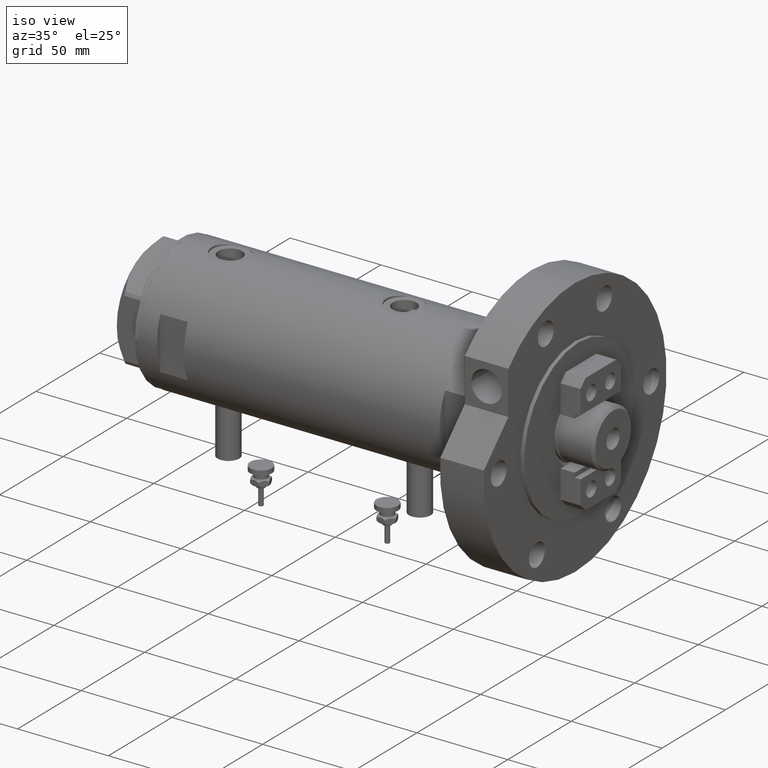
[diagram: clean part render]
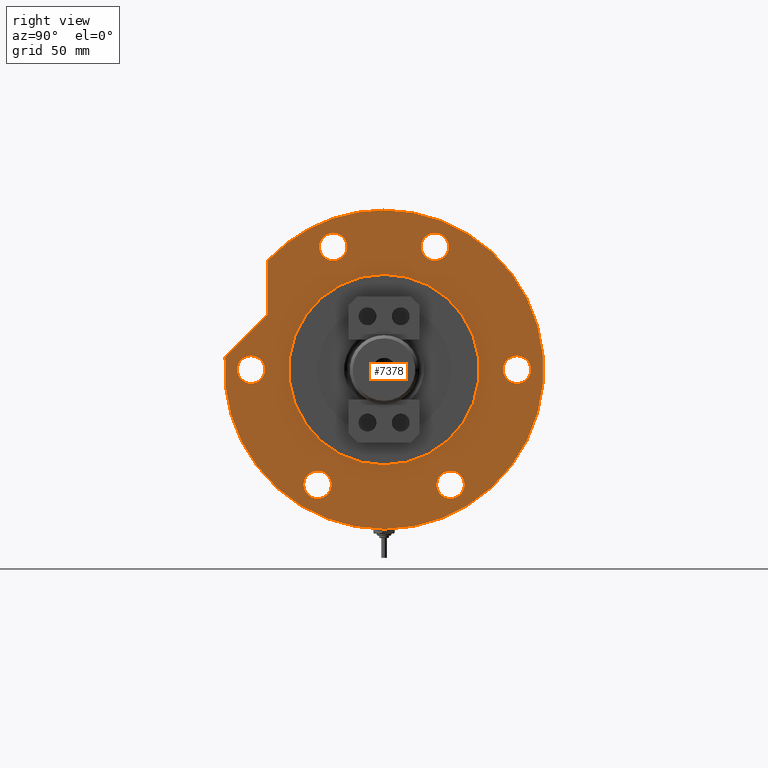
[diagram: tour spotlight — one face highlighted and labeled with its STEP entity id]
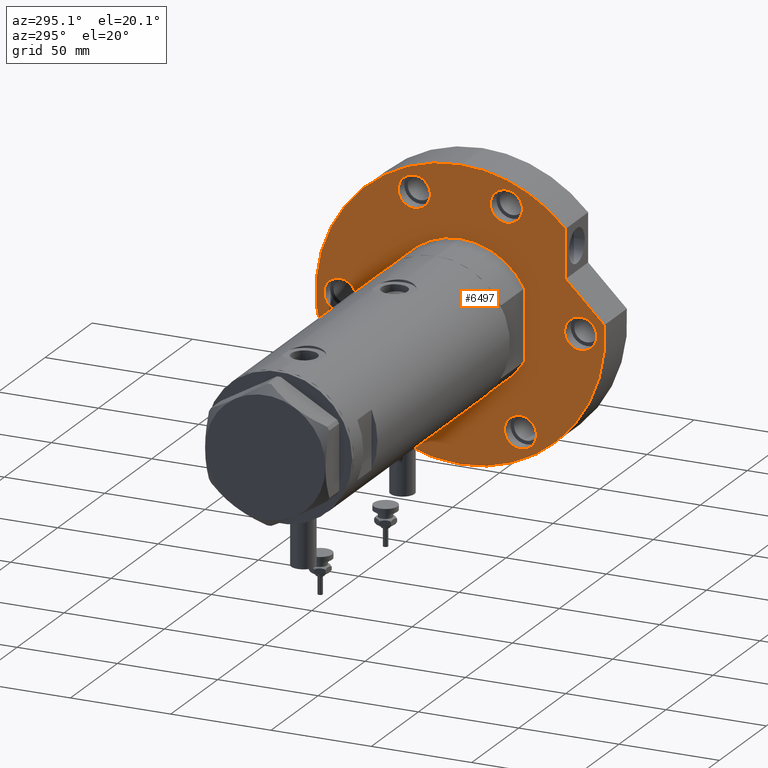
[diagram: tour spotlight — one face highlighted and labeled with its STEP entity id]
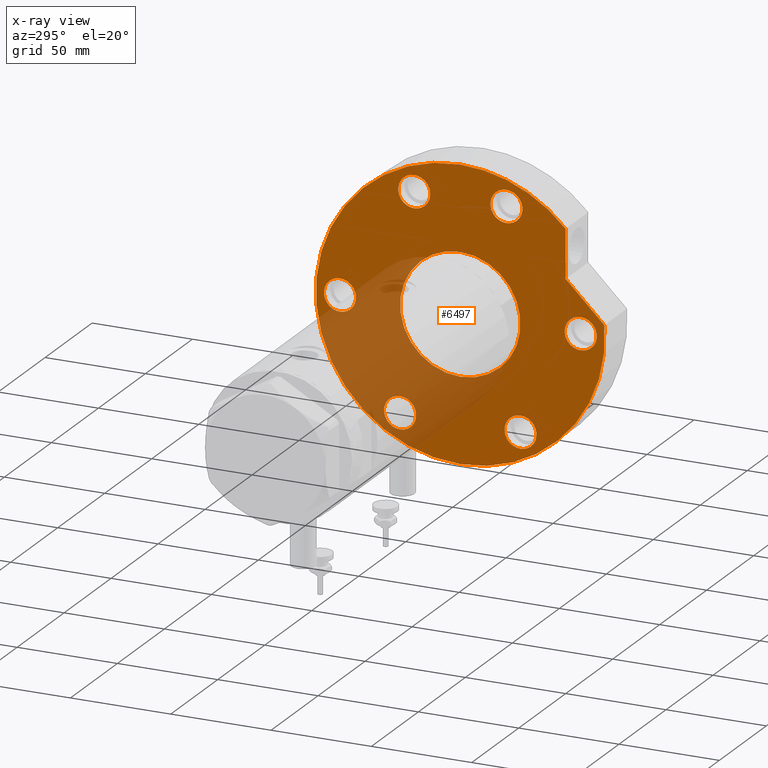
[diagram: x-ray of the same camera — body ghosted, this tour face saturated]
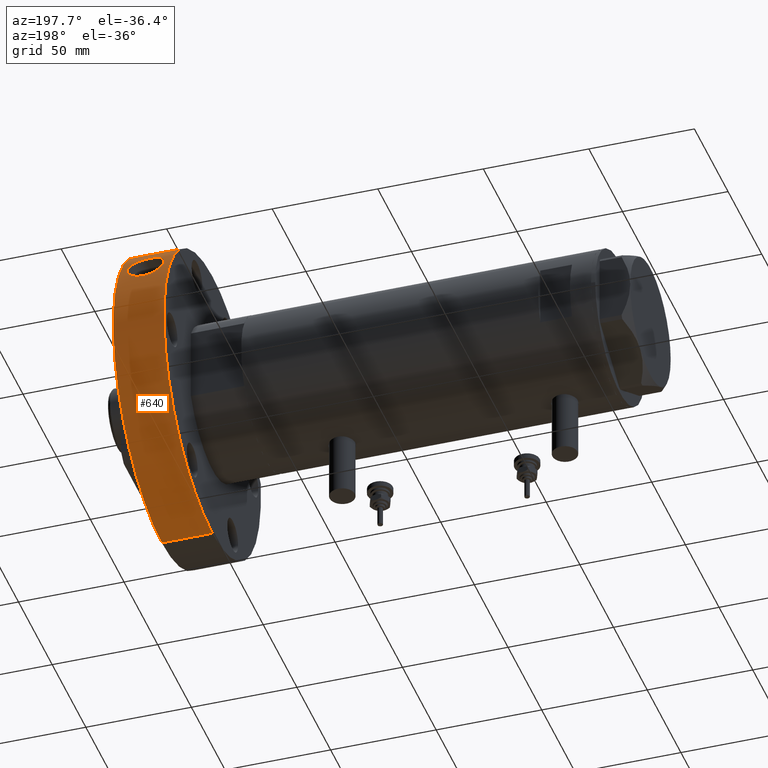
[diagram: tour spotlight — one face highlighted and labeled with its STEP entity id]
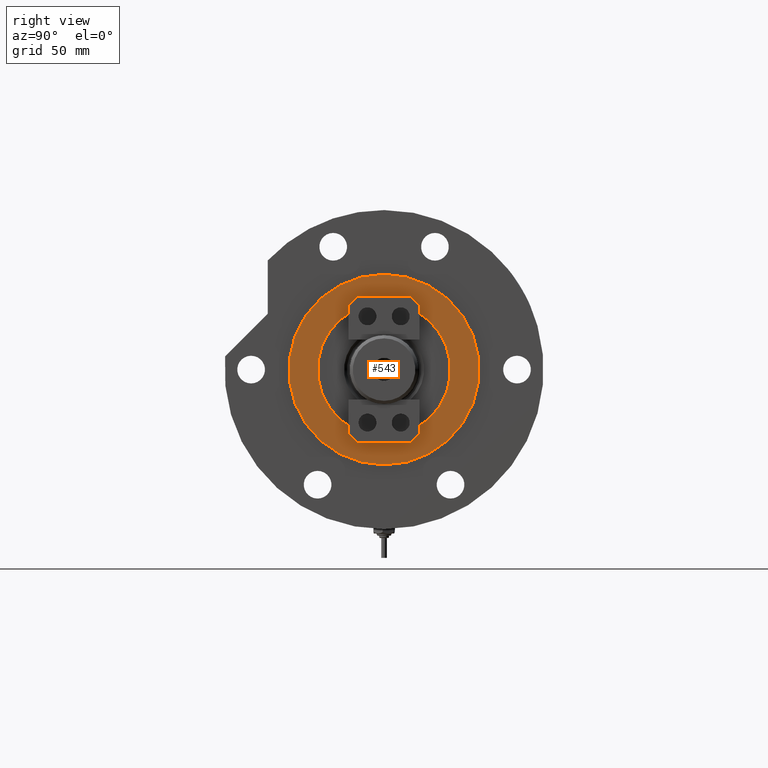
[diagram: tour spotlight — one face highlighted and labeled with its STEP entity id]
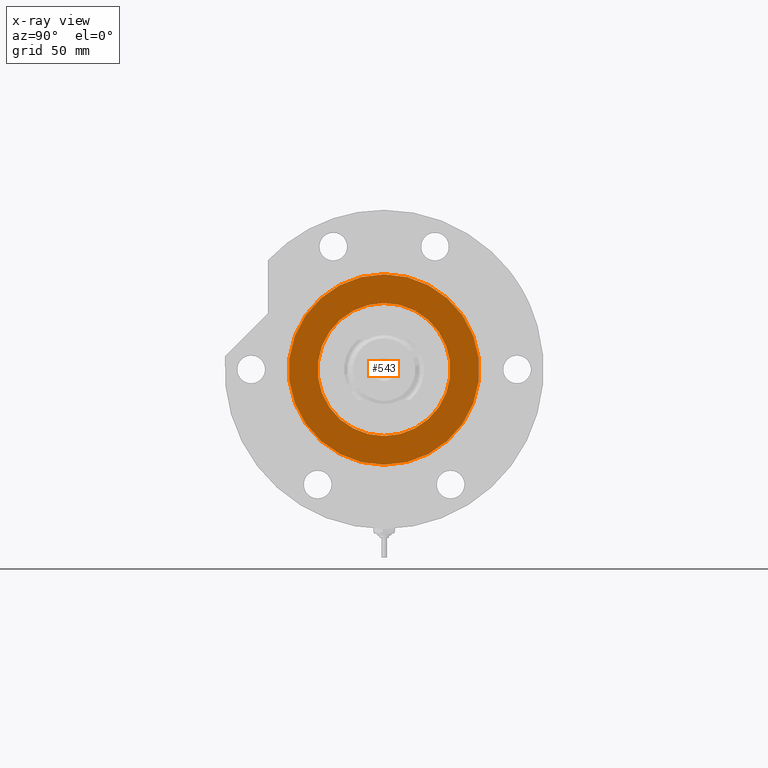
[diagram: x-ray of the same camera — body ghosted, this tour face saturated]
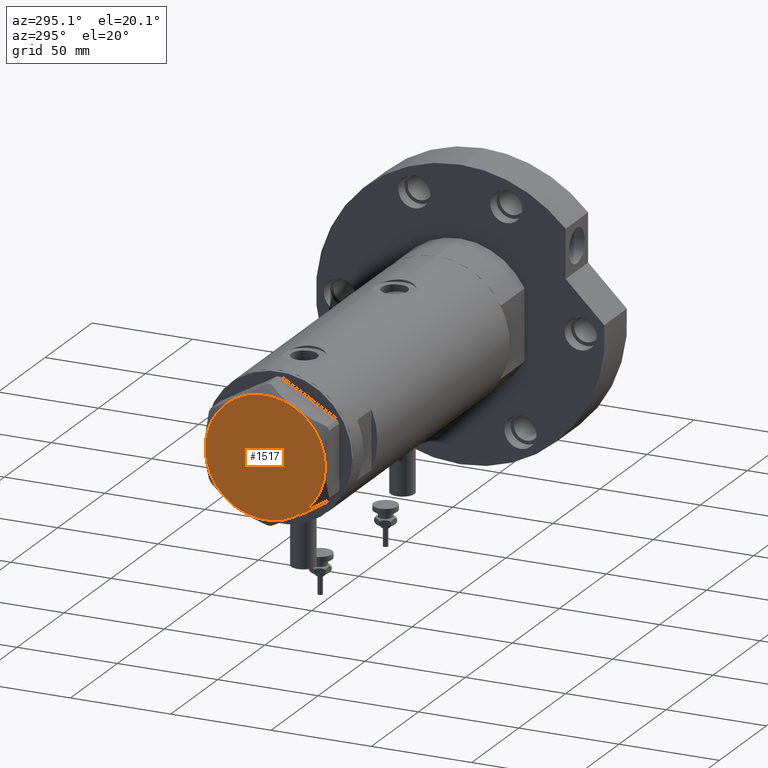
[diagram: tour spotlight — one face highlighted and labeled with its STEP entity id]
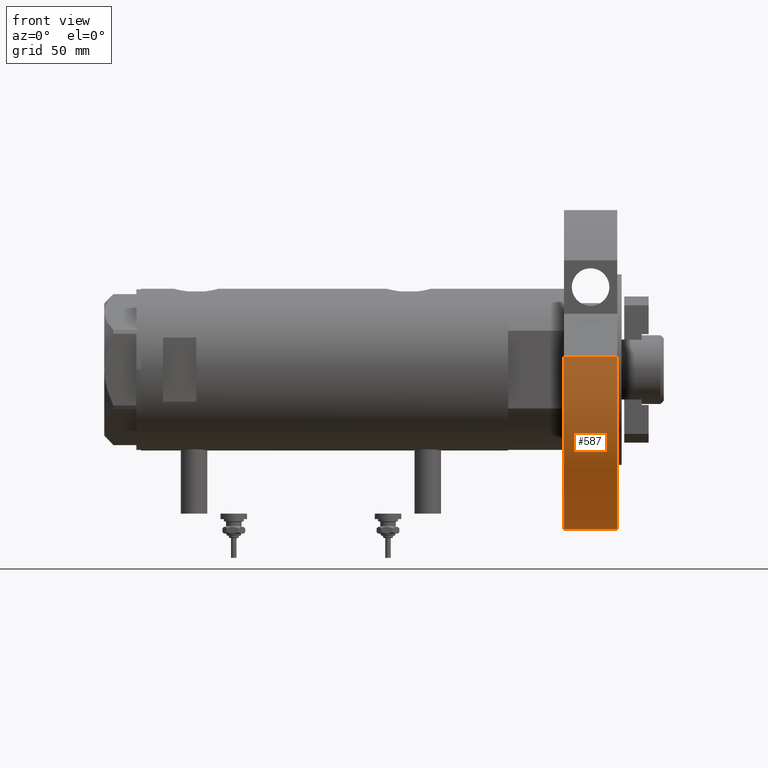
[diagram: tour spotlight — one face highlighted and labeled with its STEP entity id]
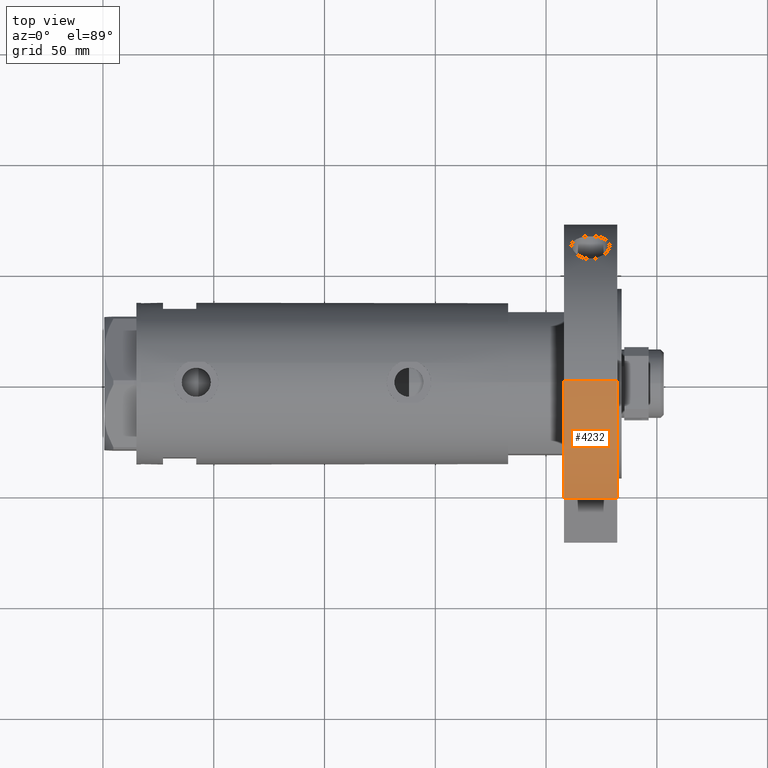
[diagram: tour spotlight — one face highlighted and labeled with its STEP entity id]
A machine part: a face-by-face anatomy tour. The part has 296 B-rep faces; the first image is the clean iso view, then the 7 largest visible faces are spotlighted one at a time (largest first), each with its STEP entity span.

Face 1 — right view, entity #7378. In plain terms, the highlighted planar face has unit normal (1, 0, -0).
Definition (entity closure, byte-faithful):
#3 = DIRECTION ( 'NONE',  ( 0.000000000000000000, 0.000000000000000000, 1.000000000000000000 ) ) ;
#47 = DIRECTION ( 'NONE',  ( 0.7071067811865513475, -0.7071067811865436870, 0.000000000000000000 ) ) ;
#147 = FACE_BOUND ( 'NONE', #7358, .T. ) ;
#154 = VERTEX_POINT ( 'NONE', #2077 ) ;
#217 = LINE ( 'NONE', #1474, #4859 ) ;
#275 = CARTESIAN_POINT ( 'NONE',  ( -51.96152422706638419, 29.99999999999987921, 24.00000000000000000 ) ) ;
#497 = LINE ( 'NONE', #8034, #2707 ) ;
#632 = CARTESIAN_POINT ( 'NONE',  ( 49.18277195067710039, 22.96100594190562560, 24.00000000000000000 ) ) ;
#639 = VERTEX_POINT ( 'NONE', #1203 ) ;
#668 = VERTEX_POINT ( 'NONE', #1363 ) ;
#674 = EDGE_LOOP ( 'NONE', ( #2686, #734 ) ) ;
#675 = CARTESIAN_POINT ( 'NONE',  ( -43.00000000000000000, 0.000000000000000000, 24.00000000000000000 ) ) ;
#684 = EDGE_CURVE ( 'NONE', #5338, #4144, #2027, .T. ) ;
#734 = ORIENTED_EDGE ( 'NONE', *, *, #3913, .F. ) ;
#738 = CIRCLE ( 'NONE', #3410, 72.00000000000000000 ) ;
#740 = AXIS2_PLACEMENT_3D ( 'NONE', #275, #980, #5437 ) ;
#743 = DIRECTION ( 'NONE',  ( 0.000000000000000000, 0.000000000000000000, 1.000000000000000000 ) ) ;
#771 = ORIENTED_EDGE ( 'NONE', *, *, #1717, .F. ) ;
#780 = CARTESIAN_POINT ( 'NONE',  ( 0.000000000000000000, 60.00000000000000000, 24.00000000000000000 ) ) ;
#799 = VERTEX_POINT ( 'NONE', #7420 ) ;
#845 = AXIS2_PLACEMENT_3D ( 'NONE', #7245, #5348, #2138 ) ;
#906 = PLANE ( 'NONE',  #6521 ) ;
#908 = DIRECTION ( 'NONE',  ( 0.000000000000000000, 0.000000000000000000, 1.000000000000000000 ) ) ;
#943 = FACE_OUTER_BOUND ( 'NONE', #1814, .T. ) ;
#980 = DIRECTION ( 'NONE',  ( 0.000000000000000000, 0.000000000000000000, 1.000000000000000000 ) ) ;
#988 = CARTESIAN_POINT ( 'NONE',  ( -58.21152422706638419, 29.99999999999987921, 24.00000000000000000 ) ) ;
#1006 = CARTESIAN_POINT ( 'NONE',  ( -51.96152422706617813, -30.00000000000023093, 24.00000000000000000 ) ) ;
#1119 = AXIS2_PLACEMENT_3D ( 'NONE', #1006, #2936, #6686 ) ;
#1203 = CARTESIAN_POINT ( 'NONE',  ( 6.249999999999999112, -60.00000000000000000, 24.00000000000000000 ) ) ;
#1210 = EDGE_LOOP ( 'NONE', ( #3872, #4931 ) ) ;
#1297 = DIRECTION ( 'NONE',  ( 0.000000000000000000, 0.000000000000000000, 1.000000000000000000 ) ) ;
#1304 = ORIENTED_EDGE ( 'NONE', *, *, #3105, .F. ) ;
#1363 = CARTESIAN_POINT ( 'NONE',  ( 61.68277195067710750, 22.96100594190562560, 24.00000000000000000 ) ) ;
#1364 = EDGE_CURVE ( 'NONE', #1454, #668, #8229, .T. ) ;
#1401 = ORIENTED_EDGE ( 'NONE', *, *, #6968, .F. ) ;
#1454 = VERTEX_POINT ( 'NONE', #632 ) ;
#1474 = CARTESIAN_POINT ( 'NONE',  ( 38.85158659923380498, 38.85158659923422420, 24.00000000000000000 ) ) ;
#1528 = VERTEX_POINT ( 'NONE', #2760 ) ;
#1539 = CARTESIAN_POINT ( 'NONE',  ( 0.000000000000000000, 0.000000000000000000, 24.00000000000000000 ) ) ;
#1584 = DIRECTION ( 'NONE',  ( 0.000000000000000000, 0.000000000000000000, 1.000000000000000000 ) ) ;
#1610 = EDGE_LOOP ( 'NONE', ( #7516, #5289 ) ) ;
#1651 = VERTEX_POINT ( 'NONE', #2288 ) ;
#1717 = EDGE_CURVE ( 'NONE', #1528, #799, #497, .T. ) ;
#1728 = DIRECTION ( 'NONE',  ( 1.000000000000000000, 0.000000000000000000, 0.000000000000000000 ) ) ;
#1747 = DIRECTION ( 'NONE',  ( 1.000000000000000000, 0.000000000000000000, 0.000000000000000000 ) ) ;
#1748 = DIRECTION ( 'NONE',  ( 1.000000000000000000, 0.000000000000000000, -0.000000000000000000 ) ) ;
#1814 = EDGE_LOOP ( 'NONE', ( #771, #5245, #7428, #3383, #7463 ) ) ;
#1822 = AXIS2_PLACEMENT_3D ( 'NONE', #3221, #7088, #2625 ) ;
#1874 = VERTEX_POINT ( 'NONE', #7851 ) ;
#1898 = CIRCLE ( 'NONE', #7698, 43.00000000000000000 ) ;
#1912 = EDGE_CURVE ( 'NONE', #154, #5623, #3508, .T. ) ;
#1939 = CARTESIAN_POINT ( 'NONE',  ( 61.68277195067710750, -22.96100594190562560, 24.00000000000000000 ) ) ;
#1985 = CARTESIAN_POINT ( 'NONE',  ( 55.43277195067710750, 22.96100594190562560, 24.00000000000000000 ) ) ;
#1990 = ORIENTED_EDGE ( 'NONE', *, *, #7160, .F. ) ;
#2004 = EDGE_CURVE ( 'NONE', #3361, #1651, #1898, .T. ) ;
#2022 = DIRECTION ( 'NONE',  ( 1.000000000000000000, 0.000000000000000000, 0.000000000000000000 ) ) ;
#2027 = CIRCLE ( 'NONE', #6185, 6.250000000000005329 ) ;
#2064 = DIRECTION ( 'NONE',  ( 1.000000000000000000, 0.000000000000000000, 0.000000000000000000 ) ) ;
#2077 = CARTESIAN_POINT ( 'NONE',  ( -6.249999999999999112, 60.00000000000000000, 24.00000000000000000 ) ) ;
#2138 = DIRECTION ( 'NONE',  ( 1.000000000000000000, 0.000000000000000000, 0.000000000000000000 ) ) ;
#2195 = AXIS2_PLACEMENT_3D ( 'NONE', #6680, #5417, #4770 ) ;
#2288 = CARTESIAN_POINT ( 'NONE',  ( 43.00000000000000000, 5.265981236333618470E-15, 24.00000000000000000 ) ) ;
#2322 = EDGE_CURVE ( 'NONE', #5421, #3734, #6749, .T. ) ;
#2345 = CARTESIAN_POINT ( 'NONE',  ( -72.00000000000000000, 0.000000000000000000, 24.00000000000000000 ) ) ;
#2363 = CARTESIAN_POINT ( 'NONE',  ( 0.000000000000000000, 0.000000000000000000, 24.00000000000000000 ) ) ;
#2622 = AXIS2_PLACEMENT_3D ( 'NONE', #7520, #4936, #1747 ) ;
#2625 = DIRECTION ( 'NONE',  ( 1.000000000000000000, 0.000000000000000000, 0.000000000000000000 ) ) ;
#2629 = AXIS2_PLACEMENT_3D ( 'NONE', #2994, #5562, #7512 ) ;
#2661 = DIRECTION ( 'NONE',  ( 0.000000000000000000, 0.000000000000000000, 1.000000000000000000 ) ) ;
#2686 = ORIENTED_EDGE ( 'NONE', *, *, #1912, .F. ) ;
#2699 = EDGE_CURVE ( 'NONE', #5421, #1528, #217, .T. ) ;
#2705 = FACE_BOUND ( 'NONE', #1210, .T. ) ;
#2707 = VECTOR ( 'NONE', #1748, 1000.000000000000000 ) ;
#2754 = CARTESIAN_POINT ( 'NONE',  ( 0.000000000000000000, 0.000000000000000000, 24.00000000000000000 ) ) ;
#2760 = CARTESIAN_POINT ( 'NONE',  ( 25.21805468567554698, 52.48511851279232587, 24.00000000000000000 ) ) ;
#2790 = DIRECTION ( 'NONE',  ( 0.000000000000000000, 0.000000000000000000, 1.000000000000000000 ) ) ;
#2876 = DIRECTION ( 'NONE',  ( 1.000000000000000000, 0.000000000000000000, 0.000000000000000000 ) ) ;
#2936 = DIRECTION ( 'NONE',  ( 0.000000000000000000, 0.000000000000000000, 1.000000000000000000 ) ) ;
#2950 = EDGE_CURVE ( 'NONE', #4144, #5338, #4465, .T. ) ;
#2994 = CARTESIAN_POINT ( 'NONE',  ( -51.96152422706638419, 29.99999999999987921, 24.00000000000000000 ) ) ;
#3105 = EDGE_CURVE ( 'NONE', #5287, #7306, #4325, .T. ) ;
#3132 = FACE_BOUND ( 'NONE', #674, .T. ) ;
#3221 = CARTESIAN_POINT ( 'NONE',  ( 0.000000000000000000, -60.00000000000000000, 24.00000000000000000 ) ) ;
#3306 = DIRECTION ( 'NONE',  ( 1.000000000000000000, 0.000000000000000000, 0.000000000000000000 ) ) ;
#3361 = VERTEX_POINT ( 'NONE', #675 ) ;
#3370 = CARTESIAN_POINT ( 'NONE',  ( -51.96152422706617813, -30.00000000000023093, 24.00000000000000000 ) ) ;
#3383 = ORIENTED_EDGE ( 'NONE', *, *, #4434, .T. ) ;
#3410 = AXIS2_PLACEMENT_3D ( 'NONE', #1539, #908, #4805 ) ;
#3454 = CARTESIAN_POINT ( 'NONE',  ( 0.000000000000000000, 0.000000000000000000, 24.00000000000000000 ) ) ;
#3508 = CIRCLE ( 'NONE', #4453, 6.249999999999999112 ) ;
#3734 = VERTEX_POINT ( 'NONE', #2345 ) ;
#3744 = VERTEX_POINT ( 'NONE', #7498 ) ;
#3872 = ORIENTED_EDGE ( 'NONE', *, *, #2950, .F. ) ;
#3901 = CARTESIAN_POINT ( 'NONE',  ( -6.249999999999999112, -60.00000000000000000, 24.00000000000000000 ) ) ;
#3913 = EDGE_CURVE ( 'NONE', #5623, #154, #4743, .T. ) ;
#3944 = AXIS2_PLACEMENT_3D ( 'NONE', #4912, #7499, #1728 ) ;
#4144 = VERTEX_POINT ( 'NONE', #5232 ) ;
#4171 = DIRECTION ( 'NONE',  ( 0.000000000000000000, 0.000000000000000000, 1.000000000000000000 ) ) ;
#4320 = CARTESIAN_POINT ( 'NONE',  ( 55.43277195067710750, 22.96100594190562560, 24.00000000000000000 ) ) ;
#4325 = CIRCLE ( 'NONE', #6486, 6.249999999999998224 ) ;
#4351 = VERTEX_POINT ( 'NONE', #988 ) ;
#4354 = CIRCLE ( 'NONE', #740, 6.249999999999998224 ) ;
#4356 = AXIS2_PLACEMENT_3D ( 'NONE', #5880, #5162, #5961 ) ;
#4361 = CIRCLE ( 'NONE', #1822, 6.249999999999999112 ) ;
#4430 = EDGE_CURVE ( 'NONE', #3744, #799, #7455, .T. ) ;
#4434 = EDGE_CURVE ( 'NONE', #3734, #3744, #738, .T. ) ;
#4453 = AXIS2_PLACEMENT_3D ( 'NONE', #780, #2790, #2022 ) ;
#4456 = ORIENTED_EDGE ( 'NONE', *, *, #5478, .F. ) ;
#4465 = CIRCLE ( 'NONE', #1119, 6.250000000000005329 ) ;
#4469 = FACE_BOUND ( 'NONE', #6691, .T. ) ;
#4474 = DIRECTION ( 'NONE',  ( 1.000000000000000000, 0.000000000000000000, 0.000000000000000000 ) ) ;
#4743 = CIRCLE ( 'NONE', #2195, 6.249999999999999112 ) ;
#4770 = DIRECTION ( 'NONE',  ( 1.000000000000000000, 0.000000000000000000, 0.000000000000000000 ) ) ;
#4805 = DIRECTION ( 'NONE',  ( 1.000000000000000000, 0.000000000000000000, 0.000000000000000000 ) ) ;
#4836 = EDGE_CURVE ( 'NONE', #639, #6218, #7730, .T. ) ;
#4859 = VECTOR ( 'NONE', #47, 1000.000000000000000 ) ;
#4885 = CIRCLE ( 'NONE', #4356, 43.00000000000000000 ) ;
#4912 = CARTESIAN_POINT ( 'NONE',  ( 0.000000000000000000, -60.00000000000000000, 24.00000000000000000 ) ) ;
#4931 = ORIENTED_EDGE ( 'NONE', *, *, #684, .F. ) ;
#4936 = DIRECTION ( 'NONE',  ( 0.000000000000000000, 0.000000000000000000, 1.000000000000000000 ) ) ;
#4951 = EDGE_CURVE ( 'NONE', #1651, #3361, #4885, .T. ) ;
#4968 = ORIENTED_EDGE ( 'NONE', *, *, #5528, .F. ) ;
#5162 = DIRECTION ( 'NONE',  ( 0.000000000000000000, 0.000000000000000000, 1.000000000000000000 ) ) ;
#5232 = CARTESIAN_POINT ( 'NONE',  ( -58.21152422706618523, -30.00000000000023093, 24.00000000000000000 ) ) ;
#5245 = ORIENTED_EDGE ( 'NONE', *, *, #2699, .F. ) ;
#5287 = VERTEX_POINT ( 'NONE', #7015 ) ;
#5289 = ORIENTED_EDGE ( 'NONE', *, *, #4951, .F. ) ;
#5338 = VERTEX_POINT ( 'NONE', #8245 ) ;
#5348 = DIRECTION ( 'NONE',  ( 0.000000000000000000, 0.000000000000000000, 1.000000000000000000 ) ) ;
#5417 = DIRECTION ( 'NONE',  ( 0.000000000000000000, 0.000000000000000000, 1.000000000000000000 ) ) ;
#5421 = VERTEX_POINT ( 'NONE', #8162 ) ;
#5437 = DIRECTION ( 'NONE',  ( 1.000000000000000000, 0.000000000000000000, 0.000000000000000000 ) ) ;
#5444 = DIRECTION ( 'NONE',  ( 1.000000000000000000, 0.000000000000000000, 0.000000000000000000 ) ) ;
#5448 = AXIS2_PLACEMENT_3D ( 'NONE', #1985, #743, #4474 ) ;
#5478 = EDGE_CURVE ( 'NONE', #668, #1454, #7186, .T. ) ;
#5528 = EDGE_CURVE ( 'NONE', #6218, #639, #4361, .T. ) ;
#5562 = DIRECTION ( 'NONE',  ( 0.000000000000000000, 0.000000000000000000, 1.000000000000000000 ) ) ;
#5564 = AXIS2_PLACEMENT_3D ( 'NONE', #2754, #4171, #2876 ) ;
#5567 = CARTESIAN_POINT ( 'NONE',  ( 6.249999999999999112, 60.00000000000000000, 24.00000000000000000 ) ) ;
#5623 = VERTEX_POINT ( 'NONE', #5567 ) ;
#5817 = ORIENTED_EDGE ( 'NONE', *, *, #1364, .F. ) ;
#5854 = CIRCLE ( 'NONE', #2629, 6.249999999999998224 ) ;
#5873 = CARTESIAN_POINT ( 'NONE',  ( 55.43277195067710750, -22.96100594190562560, 24.00000000000000000 ) ) ;
#5880 = CARTESIAN_POINT ( 'NONE',  ( 0.000000000000000000, 0.000000000000000000, 24.00000000000000000 ) ) ;
#5890 = EDGE_LOOP ( 'NONE', ( #6646, #1401 ) ) ;
#5906 = FACE_BOUND ( 'NONE', #5890, .T. ) ;
#5961 = DIRECTION ( 'NONE',  ( 1.000000000000000000, 0.000000000000000000, 0.000000000000000000 ) ) ;
#6026 = EDGE_LOOP ( 'NONE', ( #4968, #6952 ) ) ;
#6028 = DIRECTION ( 'NONE',  ( 1.000000000000000000, 0.000000000000000000, -0.000000000000000000 ) ) ;
#6109 = DIRECTION ( 'NONE',  ( 0.000000000000000000, 0.000000000000000000, 1.000000000000000000 ) ) ;
#6185 = AXIS2_PLACEMENT_3D ( 'NONE', #3370, #2661, #2064 ) ;
#6218 = VERTEX_POINT ( 'NONE', #3901 ) ;
#6486 = AXIS2_PLACEMENT_3D ( 'NONE', #5873, #1297, #3306 ) ;
#6521 = AXIS2_PLACEMENT_3D ( 'NONE', #3454, #1584, #6028 ) ;
#6646 = ORIENTED_EDGE ( 'NONE', *, *, #7638, .F. ) ;
#6680 = CARTESIAN_POINT ( 'NONE',  ( 0.000000000000000000, 60.00000000000000000, 24.00000000000000000 ) ) ;
#6686 = DIRECTION ( 'NONE',  ( 1.000000000000000000, 0.000000000000000000, 0.000000000000000000 ) ) ;
#6691 = EDGE_LOOP ( 'NONE', ( #5817, #4456 ) ) ;
#6749 = CIRCLE ( 'NONE', #845, 72.00000000000000000 ) ;
#6860 = DIRECTION ( 'NONE',  ( 1.000000000000000000, 0.000000000000000000, 0.000000000000000000 ) ) ;
#6952 = ORIENTED_EDGE ( 'NONE', *, *, #4836, .F. ) ;
#6968 = EDGE_CURVE ( 'NONE', #1874, #4351, #4354, .T. ) ;
#7015 = CARTESIAN_POINT ( 'NONE',  ( 49.18277195067710039, -22.96100594190562560, 24.00000000000000000 ) ) ;
#7088 = DIRECTION ( 'NONE',  ( 0.000000000000000000, 0.000000000000000000, 1.000000000000000000 ) ) ;
#7160 = EDGE_CURVE ( 'NONE', #7306, #5287, #7746, .T. ) ;
#7165 = FACE_BOUND ( 'NONE', #1610, .T. ) ;
#7186 = CIRCLE ( 'NONE', #5448, 6.249999999999998224 ) ;
#7245 = CARTESIAN_POINT ( 'NONE',  ( 0.000000000000000000, 0.000000000000000000, 24.00000000000000000 ) ) ;
#7306 = VERTEX_POINT ( 'NONE', #1939 ) ;
#7358 = EDGE_LOOP ( 'NONE', ( #1304, #1990 ) ) ;
#7378 = ADVANCED_FACE ( 'NONE', ( #3132, #4469, #147, #7975, #2705, #5906, #943, #7165 ), #906, .T. ) ;
#7420 = CARTESIAN_POINT ( 'NONE',  ( 49.28805468567554726, 52.48511851279232587, 24.00000000000000000 ) ) ;
#7428 = ORIENTED_EDGE ( 'NONE', *, *, #2322, .T. ) ;
#7455 = CIRCLE ( 'NONE', #5564, 72.00000000000000000 ) ;
#7463 = ORIENTED_EDGE ( 'NONE', *, *, #4430, .T. ) ;
#7498 = CARTESIAN_POINT ( 'NONE',  ( 72.00000000000000000, 8.817456953860941711E-15, 24.00000000000000000 ) ) ;
#7499 = DIRECTION ( 'NONE',  ( 0.000000000000000000, 0.000000000000000000, 1.000000000000000000 ) ) ;
#7512 = DIRECTION ( 'NONE',  ( 1.000000000000000000, 0.000000000000000000, 0.000000000000000000 ) ) ;
#7516 = ORIENTED_EDGE ( 'NONE', *, *, #2004, .F. ) ;
#7520 = CARTESIAN_POINT ( 'NONE',  ( 55.43277195067710750, -22.96100594190562560, 24.00000000000000000 ) ) ;
#7558 = AXIS2_PLACEMENT_3D ( 'NONE', #4320, #3, #6860 ) ;
#7638 = EDGE_CURVE ( 'NONE', #4351, #1874, #5854, .T. ) ;
#7698 = AXIS2_PLACEMENT_3D ( 'NONE', #2363, #6109, #5444 ) ;
#7730 = CIRCLE ( 'NONE', #3944, 6.249999999999999112 ) ;
#7746 = CIRCLE ( 'NONE', #2622, 6.249999999999998224 ) ;
#7851 = CARTESIAN_POINT ( 'NONE',  ( -45.71152422706637708, 29.99999999999987921, 24.00000000000000000 ) ) ;
#7975 = FACE_BOUND ( 'NONE', #6026, .T. ) ;
#8034 = CARTESIAN_POINT ( 'NONE',  ( 0.000000000000000000, 52.48511851279232587, 24.00000000000000000 ) ) ;
#8162 = CARTESIAN_POINT ( 'NONE',  ( 5.949394898342027282, 71.75377830012563152, 24.00000000000000000 ) ) ;
#8229 = CIRCLE ( 'NONE', #7558, 6.249999999999998224 ) ;
#8245 = CARTESIAN_POINT ( 'NONE',  ( -45.71152422706617813, -30.00000000000023093, 24.00000000000000000 ) ) ;

Face 2 — auxiliary view, entity #6497. An x-ray twin of the same camera follows (body ghosted, this face saturated) — the face is partly hidden behind the body. In plain terms, the highlighted planar face has unit normal (1, 0, -0).
Definition (entity closure, byte-faithful):
#10 = DIRECTION ( 'NONE',  ( 0.7071067811865513475, -0.7071067811865436870, -0.000000000000000000 ) ) ;
#19 = CARTESIAN_POINT ( 'NONE',  ( 0.000000000000000000, -60.00000000000000000, 0.000000000000000000 ) ) ;
#21 = EDGE_CURVE ( 'NONE', #2517, #1837, #5795, .T. ) ;
#45 = CARTESIAN_POINT ( 'NONE',  ( 47.43277195067710750, 22.96100594190562560, 0.000000000000000000 ) ) ;
#80 = CARTESIAN_POINT ( 'NONE',  ( 55.43277195067710750, -22.96100594190562560, 0.000000000000000000 ) ) ;
#115 = FACE_BOUND ( 'NONE', #2583, .T. ) ;
#153 = DIRECTION ( 'NONE',  ( 0.000000000000000000, 0.000000000000000000, -1.000000000000000000 ) ) ;
#161 = CIRCLE ( 'NONE', #6198, 72.00000000000000000 ) ;
#200 = FACE_BOUND ( 'NONE', #6512, .T. ) ;
#220 = VERTEX_POINT ( 'NONE', #3337 ) ;
#282 = CARTESIAN_POINT ( 'NONE',  ( 8.000000000000000000, 60.00000000000000000, 0.000000000000000000 ) ) ;
#353 = AXIS2_PLACEMENT_3D ( 'NONE', #4301, #1831, #1159 ) ;
#377 = CARTESIAN_POINT ( 'NONE',  ( -59.96152422706617813, -30.00000000000023093, 0.000000000000000000 ) ) ;
#500 = AXIS2_PLACEMENT_3D ( 'NONE', #7218, #3970, #3222 ) ;
#570 = CARTESIAN_POINT ( 'NONE',  ( 0.000000000000000000, 0.000000000000000000, 0.000000000000000000 ) ) ;
#589 = VERTEX_POINT ( 'NONE', #5736 ) ;
#597 = EDGE_CURVE ( 'NONE', #7614, #589, #7142, .T. ) ;
#695 = DIRECTION ( 'NONE',  ( 0.000000000000000000, 0.000000000000000000, 1.000000000000000000 ) ) ;
#741 = CARTESIAN_POINT ( 'NONE',  ( 55.43277195067710750, 22.96100594190562560, 0.000000000000000000 ) ) ;
#750 = DIRECTION ( 'NONE',  ( -1.000000000000000000, 0.000000000000000000, 0.000000000000000000 ) ) ;
#779 = CARTESIAN_POINT ( 'NONE',  ( 63.43277195067710750, -22.96100594190562560, 0.000000000000000000 ) ) ;
#903 = EDGE_CURVE ( 'NONE', #3929, #6042, #4698, .T. ) ;
#923 = EDGE_LOOP ( 'NONE', ( #2698, #1582 ) ) ;
#946 = EDGE_CURVE ( 'NONE', #220, #4956, #5053, .T. ) ;
#968 = DIRECTION ( 'NONE',  ( 1.000000000000000000, 0.000000000000000000, 0.000000000000000000 ) ) ;
#1039 = ORIENTED_EDGE ( 'NONE', *, *, #2334, .T. ) ;
#1058 = CARTESIAN_POINT ( 'NONE',  ( 63.43277195067710750, 22.96100594190562560, 0.000000000000000000 ) ) ;
#1067 = DIRECTION ( 'NONE',  ( 0.000000000000000000, 0.000000000000000000, -1.000000000000000000 ) ) ;
#1068 = CARTESIAN_POINT ( 'NONE',  ( -43.96152422706638419, 29.99999999999987921, 0.000000000000000000 ) ) ;
#1086 = AXIS2_PLACEMENT_3D ( 'NONE', #3613, #1067, #6707 ) ;
#1110 = CARTESIAN_POINT ( 'NONE',  ( -72.00000000000000000, 0.000000000000000000, 0.000000000000000000 ) ) ;
#1159 = DIRECTION ( 'NONE',  ( -1.000000000000000000, 0.000000000000000000, 0.000000000000000000 ) ) ;
#1204 = VERTEX_POINT ( 'NONE', #4538 ) ;
#1217 = EDGE_CURVE ( 'NONE', #7531, #7240, #4168, .T. ) ;
#1229 = VERTEX_POINT ( 'NONE', #1058 ) ;
#1285 = CARTESIAN_POINT ( 'NONE',  ( 0.000000000000000000, 0.000000000000000000, 0.000000000000000000 ) ) ;
#1294 = DIRECTION ( 'NONE',  ( -1.000000000000000000, 0.000000000000000000, 0.000000000000000000 ) ) ;
#1301 = LINE ( 'NONE', #4604, #6370 ) ;
#1309 = CARTESIAN_POINT ( 'NONE',  ( 0.000000000000000000, -60.00000000000000000, 0.000000000000000000 ) ) ;
#1312 = EDGE_CURVE ( 'NONE', #220, #4519, #161, .T. ) ;
#1409 = EDGE_CURVE ( 'NONE', #6042, #3929, #4843, .T. ) ;
#1419 = DIRECTION ( 'NONE',  ( 0.000000000000000000, 0.000000000000000000, -1.000000000000000000 ) ) ;
#1435 = ORIENTED_EDGE ( 'NONE', *, *, #5256, .F. ) ;
#1466 = VERTEX_POINT ( 'NONE', #45 ) ;
#1582 = ORIENTED_EDGE ( 'NONE', *, *, #4228, .F. ) ;
#1685 = AXIS2_PLACEMENT_3D ( 'NONE', #2889, #3471, #7356 ) ;
#1701 = VERTEX_POINT ( 'NONE', #3544 ) ;
#1816 = EDGE_CURVE ( 'NONE', #7239, #2211, #5266, .T. ) ;
#1831 = DIRECTION ( 'NONE',  ( 0.000000000000000000, 0.000000000000000000, -1.000000000000000000 ) ) ;
#1837 = VERTEX_POINT ( 'NONE', #282 ) ;
#1847 = ORIENTED_EDGE ( 'NONE', *, *, #5060, .T. ) ;
#1849 = DIRECTION ( 'NONE',  ( 0.000000000000000000, 0.000000000000000000, -1.000000000000000000 ) ) ;
#1884 = CARTESIAN_POINT ( 'NONE',  ( -8.000000000000000000, 60.00000000000000000, 0.000000000000000000 ) ) ;
#1947 = FACE_BOUND ( 'NONE', #5704, .T. ) ;
#2030 = FACE_OUTER_BOUND ( 'NONE', #7440, .T. ) ;
#2037 = DIRECTION ( 'NONE',  ( 1.000000000000000000, 0.000000000000000000, 0.000000000000000000 ) ) ;
#2160 = AXIS2_PLACEMENT_3D ( 'NONE', #5707, #7656, #1294 ) ;
#2181 = DIRECTION ( 'NONE',  ( 0.000000000000000000, 0.000000000000000000, -1.000000000000000000 ) ) ;
#2211 = VERTEX_POINT ( 'NONE', #7840 ) ;
#2221 = CARTESIAN_POINT ( 'NONE',  ( 0.000000000000000000, 0.000000000000000000, 0.000000000000000000 ) ) ;
#2229 = DIRECTION ( 'NONE',  ( 1.000000000000000000, 0.000000000000000000, 0.000000000000000000 ) ) ;
#2265 = ORIENTED_EDGE ( 'NONE', *, *, #1816, .F. ) ;
#2334 = EDGE_CURVE ( 'NONE', #6564, #1204, #4191, .T. ) ;
#2517 = VERTEX_POINT ( 'NONE', #1884 ) ;
#2577 = DIRECTION ( 'NONE',  ( -1.000000000000000000, 0.000000000000000000, 0.000000000000000000 ) ) ;
#2583 = EDGE_LOOP ( 'NONE', ( #7924, #1039 ) ) ;
#2698 = ORIENTED_EDGE ( 'NONE', *, *, #6714, .F. ) ;
#2837 = CARTESIAN_POINT ( 'NONE',  ( -30.00000000000000000, 3.673940397442059178E-15, 0.000000000000000000 ) ) ;
#2858 = DIRECTION ( 'NONE',  ( 0.000000000000000000, 0.000000000000000000, 1.000000000000000000 ) ) ;
#2889 = CARTESIAN_POINT ( 'NONE',  ( -51.96152422706638419, 29.99999999999987921, 0.000000000000000000 ) ) ;
#3108 = EDGE_CURVE ( 'NONE', #7240, #7531, #7576, .T. ) ;
#3113 = DIRECTION ( 'NONE',  ( -1.000000000000000000, 0.000000000000000000, 0.000000000000000000 ) ) ;
#3133 = DIRECTION ( 'NONE',  ( 0.000000000000000000, 0.000000000000000000, 1.000000000000000000 ) ) ;
#3222 = DIRECTION ( 'NONE',  ( 1.000000000000000000, 0.000000000000000000, -0.000000000000000000 ) ) ;
#3312 = ORIENTED_EDGE ( 'NONE', *, *, #903, .F. ) ;
#3337 = CARTESIAN_POINT ( 'NONE',  ( 5.949394898342027282, 71.75377830012563152, 0.000000000000000000 ) ) ;
#3377 = PLANE ( 'NONE',  #500 ) ;
#3471 = DIRECTION ( 'NONE',  ( 0.000000000000000000, 0.000000000000000000, -1.000000000000000000 ) ) ;
#3544 = CARTESIAN_POINT ( 'NONE',  ( -59.96152422706638419, 29.99999999999987921, 0.000000000000000000 ) ) ;
#3564 = CARTESIAN_POINT ( 'NONE',  ( 55.43277195067710750, -22.96100594190562560, 0.000000000000000000 ) ) ;
#3566 = AXIS2_PLACEMENT_3D ( 'NONE', #5347, #2181, #7927 ) ;
#3580 = ORIENTED_EDGE ( 'NONE', *, *, #946, .T. ) ;
#3613 = CARTESIAN_POINT ( 'NONE',  ( -51.96152422706617813, -30.00000000000023093, 0.000000000000000000 ) ) ;
#3643 = EDGE_LOOP ( 'NONE', ( #3312, #7715 ) ) ;
#3663 = CARTESIAN_POINT ( 'NONE',  ( -8.000000000000000000, -60.00000000000000000, 0.000000000000000000 ) ) ;
#3743 = CARTESIAN_POINT ( 'NONE',  ( -43.96152422706617813, -30.00000000000023093, 0.000000000000000000 ) ) ;
#3831 = CIRCLE ( 'NONE', #4905, 8.000000000000000000 ) ;
#3921 = AXIS2_PLACEMENT_3D ( 'NONE', #80, #1419, #750 ) ;
#3929 = VERTEX_POINT ( 'NONE', #377 ) ;
#3952 = CIRCLE ( 'NONE', #353, 8.000000000000000000 ) ;
#3970 = DIRECTION ( 'NONE',  ( 0.000000000000000000, 0.000000000000000000, 1.000000000000000000 ) ) ;
#4046 = DIRECTION ( 'NONE',  ( -1.000000000000000000, 0.000000000000000000, 0.000000000000000000 ) ) ;
#4111 = DIRECTION ( 'NONE',  ( 1.000000000000000000, 0.000000000000000000, 0.000000000000000000 ) ) ;
#4168 = CIRCLE ( 'NONE', #7950, 8.000000000000000000 ) ;
#4172 = DIRECTION ( 'NONE',  ( 0.000000000000000000, 0.000000000000000000, -1.000000000000000000 ) ) ;
#4191 = CIRCLE ( 'NONE', #5405, 30.00000000000000000 ) ;
#4214 = AXIS2_PLACEMENT_3D ( 'NONE', #741, #153, #7126 ) ;
#4228 = EDGE_CURVE ( 'NONE', #1229, #1466, #4348, .T. ) ;
#4301 = CARTESIAN_POINT ( 'NONE',  ( 55.43277195067710750, 22.96100594190562560, 0.000000000000000000 ) ) ;
#4348 = CIRCLE ( 'NONE', #4214, 8.000000000000000000 ) ;
#4392 = CARTESIAN_POINT ( 'NONE',  ( 47.43277195067710750, -22.96100594190562560, 0.000000000000000000 ) ) ;
#4519 = VERTEX_POINT ( 'NONE', #1110 ) ;
#4538 = CARTESIAN_POINT ( 'NONE',  ( 30.00000000000000000, 0.000000000000000000, 0.000000000000000000 ) ) ;
#4549 = DIRECTION ( 'NONE',  ( 1.000000000000000000, 0.000000000000000000, 0.000000000000000000 ) ) ;
#4572 = AXIS2_PLACEMENT_3D ( 'NONE', #7584, #5716, #8298 ) ;
#4586 = ORIENTED_EDGE ( 'NONE', *, *, #21, .F. ) ;
#4604 = CARTESIAN_POINT ( 'NONE',  ( 25.21805468567554698, 52.48511851279232587, 0.000000000000000000 ) ) ;
#4648 = CARTESIAN_POINT ( 'NONE',  ( 25.21805468567554698, 52.48511851279233298, 0.000000000000000000 ) ) ;
#4698 = CIRCLE ( 'NONE', #1086, 8.000000000000000000 ) ;
#4740 = EDGE_CURVE ( 'NONE', #4519, #7239, #5703, .T. ) ;
#4768 = AXIS2_PLACEMENT_3D ( 'NONE', #1285, #695, #5737 ) ;
#4843 = CIRCLE ( 'NONE', #4572, 8.000000000000000000 ) ;
#4905 = AXIS2_PLACEMENT_3D ( 'NONE', #6115, #4172, #4046 ) ;
#4956 = VERTEX_POINT ( 'NONE', #4648 ) ;
#4965 = CARTESIAN_POINT ( 'NONE',  ( 25.21805468567554698, 52.48511851279232587, 0.000000000000000000 ) ) ;
#5014 = ORIENTED_EDGE ( 'NONE', *, *, #1217, .F. ) ;
#5053 = LINE ( 'NONE', #4965, #6596 ) ;
#5060 = EDGE_CURVE ( 'NONE', #4956, #2211, #1301, .T. ) ;
#5163 = ORIENTED_EDGE ( 'NONE', *, *, #3108, .F. ) ;
#5189 = CARTESIAN_POINT ( 'NONE',  ( 72.00000000000000000, 8.817456953860941711E-15, 0.000000000000000000 ) ) ;
#5191 = AXIS2_PLACEMENT_3D ( 'NONE', #1309, #1849, #3113 ) ;
#5236 = ORIENTED_EDGE ( 'NONE', *, *, #597, .F. ) ;
#5256 = EDGE_CURVE ( 'NONE', #1701, #7574, #7611, .T. ) ;
#5266 = CIRCLE ( 'NONE', #5539, 72.00000000000000000 ) ;
#5347 = CARTESIAN_POINT ( 'NONE',  ( -51.96152422706638419, 29.99999999999987921, 0.000000000000000000 ) ) ;
#5388 = CARTESIAN_POINT ( 'NONE',  ( 0.000000000000000000, 0.000000000000000000, 0.000000000000000000 ) ) ;
#5405 = AXIS2_PLACEMENT_3D ( 'NONE', #8012, #8132, #2229 ) ;
#5539 = AXIS2_PLACEMENT_3D ( 'NONE', #570, #3133, #4549 ) ;
#5575 = EDGE_CURVE ( 'NONE', #1837, #2517, #3831, .T. ) ;
#5703 = CIRCLE ( 'NONE', #8006, 72.00000000000000000 ) ;
#5704 = EDGE_LOOP ( 'NONE', ( #1435, #8224 ) ) ;
#5707 = CARTESIAN_POINT ( 'NONE',  ( 0.000000000000000000, 60.00000000000000000, 0.000000000000000000 ) ) ;
#5716 = DIRECTION ( 'NONE',  ( 0.000000000000000000, 0.000000000000000000, -1.000000000000000000 ) ) ;
#5736 = CARTESIAN_POINT ( 'NONE',  ( 8.000000000000000000, -60.00000000000000000, 0.000000000000000000 ) ) ;
#5737 = DIRECTION ( 'NONE',  ( 1.000000000000000000, 0.000000000000000000, 0.000000000000000000 ) ) ;
#5795 = CIRCLE ( 'NONE', #2160, 8.000000000000000000 ) ;
#5813 = DIRECTION ( 'NONE',  ( 0.000000000000000000, 0.000000000000000000, -1.000000000000000000 ) ) ;
#5862 = CIRCLE ( 'NONE', #3566, 8.000000000000000000 ) ;
#5868 = FACE_BOUND ( 'NONE', #7953, .T. ) ;
#6042 = VERTEX_POINT ( 'NONE', #3743 ) ;
#6046 = EDGE_LOOP ( 'NONE', ( #4586, #7311 ) ) ;
#6115 = CARTESIAN_POINT ( 'NONE',  ( 0.000000000000000000, 60.00000000000000000, 0.000000000000000000 ) ) ;
#6176 = DIRECTION ( 'NONE',  ( 0.000000000000000000, 0.000000000000000000, -1.000000000000000000 ) ) ;
#6198 = AXIS2_PLACEMENT_3D ( 'NONE', #5388, #7325, #4111 ) ;
#6370 = VECTOR ( 'NONE', #2037, 1000.000000000000000 ) ;
#6497 = ADVANCED_FACE ( 'NONE', ( #6505, #7775, #200, #5868, #6582, #1947, #115, #2030 ), #3377, .F. ) ;
#6505 = FACE_BOUND ( 'NONE', #6046, .T. ) ;
#6512 = EDGE_LOOP ( 'NONE', ( #5163, #5014 ) ) ;
#6564 = VERTEX_POINT ( 'NONE', #2837 ) ;
#6582 = FACE_BOUND ( 'NONE', #3643, .T. ) ;
#6596 = VECTOR ( 'NONE', #10, 1000.000000000000114 ) ;
#6707 = DIRECTION ( 'NONE',  ( -1.000000000000000000, 0.000000000000000000, 0.000000000000000000 ) ) ;
#6714 = EDGE_CURVE ( 'NONE', #1466, #1229, #3952, .T. ) ;
#6728 = AXIS2_PLACEMENT_3D ( 'NONE', #19, #5813, #2577 ) ;
#6931 = CIRCLE ( 'NONE', #4768, 30.00000000000000000 ) ;
#7111 = ORIENTED_EDGE ( 'NONE', *, *, #1312, .F. ) ;
#7126 = DIRECTION ( 'NONE',  ( -1.000000000000000000, 0.000000000000000000, 0.000000000000000000 ) ) ;
#7142 = CIRCLE ( 'NONE', #6728, 8.000000000000000000 ) ;
#7217 = EDGE_CURVE ( 'NONE', #1204, #6564, #6931, .T. ) ;
#7218 = CARTESIAN_POINT ( 'NONE',  ( 0.000000000000000000, 0.000000000000000000, 0.000000000000000000 ) ) ;
#7239 = VERTEX_POINT ( 'NONE', #5189 ) ;
#7240 = VERTEX_POINT ( 'NONE', #4392 ) ;
#7273 = ORIENTED_EDGE ( 'NONE', *, *, #4740, .F. ) ;
#7311 = ORIENTED_EDGE ( 'NONE', *, *, #5575, .F. ) ;
#7325 = DIRECTION ( 'NONE',  ( 0.000000000000000000, 0.000000000000000000, 1.000000000000000000 ) ) ;
#7356 = DIRECTION ( 'NONE',  ( -1.000000000000000000, 0.000000000000000000, 0.000000000000000000 ) ) ;
#7440 = EDGE_LOOP ( 'NONE', ( #3580, #1847, #2265, #7273, #7111 ) ) ;
#7451 = ORIENTED_EDGE ( 'NONE', *, *, #8160, .F. ) ;
#7491 = CIRCLE ( 'NONE', #5191, 8.000000000000000000 ) ;
#7531 = VERTEX_POINT ( 'NONE', #779 ) ;
#7574 = VERTEX_POINT ( 'NONE', #1068 ) ;
#7576 = CIRCLE ( 'NONE', #3921, 8.000000000000000000 ) ;
#7584 = CARTESIAN_POINT ( 'NONE',  ( -51.96152422706617813, -30.00000000000023093, 0.000000000000000000 ) ) ;
#7611 = CIRCLE ( 'NONE', #1685, 8.000000000000000000 ) ;
#7614 = VERTEX_POINT ( 'NONE', #3663 ) ;
#7656 = DIRECTION ( 'NONE',  ( 0.000000000000000000, 0.000000000000000000, -1.000000000000000000 ) ) ;
#7715 = ORIENTED_EDGE ( 'NONE', *, *, #1409, .F. ) ;
#7775 = FACE_BOUND ( 'NONE', #923, .T. ) ;
#7840 = CARTESIAN_POINT ( 'NONE',  ( 49.28805468567554726, 52.48511851279232587, 0.000000000000000000 ) ) ;
#7924 = ORIENTED_EDGE ( 'NONE', *, *, #7217, .T. ) ;
#7927 = DIRECTION ( 'NONE',  ( -1.000000000000000000, 0.000000000000000000, 0.000000000000000000 ) ) ;
#7950 = AXIS2_PLACEMENT_3D ( 'NONE', #3564, #6176, #7963 ) ;
#7953 = EDGE_LOOP ( 'NONE', ( #5236, #7451 ) ) ;
#7954 = EDGE_CURVE ( 'NONE', #7574, #1701, #5862, .T. ) ;
#7963 = DIRECTION ( 'NONE',  ( -1.000000000000000000, 0.000000000000000000, 0.000000000000000000 ) ) ;
#8006 = AXIS2_PLACEMENT_3D ( 'NONE', #2221, #2858, #968 ) ;
#8012 = CARTESIAN_POINT ( 'NONE',  ( 0.000000000000000000, 0.000000000000000000, 0.000000000000000000 ) ) ;
#8132 = DIRECTION ( 'NONE',  ( 0.000000000000000000, 0.000000000000000000, 1.000000000000000000 ) ) ;
#8160 = EDGE_CURVE ( 'NONE', #589, #7614, #7491, .T. ) ;
#8224 = ORIENTED_EDGE ( 'NONE', *, *, #7954, .F. ) ;
#8298 = DIRECTION ( 'NONE',  ( -1.000000000000000000, 0.000000000000000000, 0.000000000000000000 ) ) ;

Face 3 — auxiliary view, entity #640. In plain terms, the highlighted cylindrical surface (partial cylindrical patch) has radius 72 mm, axis along (-1, -0, 0).
Definition (entity closure, byte-faithful):
#179 = CARTESIAN_POINT ( 'NONE',  ( 29.26896999206883976, -65.78250232959788946, 9.068741599877188975 ) ) ;
#223 = CARTESIAN_POINT ( 'NONE',  ( 33.97982076943237217, -63.47794459436669001, 4.151127599678521740 ) ) ;
#266 = CARTESIAN_POINT ( 'NONE',  ( 37.25305468567560041, -61.61339072463129440, 3.499999999999105160 ) ) ;
#297 = CARTESIAN_POINT ( 'NONE',  ( 39.82450719299651354, -59.98628528028984874, 20.11851852717635936 ) ) ;
#502 = CARTESIAN_POINT ( 'NONE',  ( 45.73459439260379611, -55.60889200603636340, 12.63979251166938589 ) ) ;
#593 = LINE ( 'NONE', #1922, #2311 ) ;
#640 = ADVANCED_FACE ( 'NONE', ( #4426, #7004 ), #7768, .T. ) ;
#692 = ORIENTED_EDGE ( 'NONE', *, *, #4434, .F. ) ;
#738 = CIRCLE ( 'NONE', #3410, 72.00000000000000000 ) ;
#806 = CARTESIAN_POINT ( 'NONE',  ( 29.73065686525130502, -65.57557200089826210, 7.999855544294678822 ) ) ;
#836 = VERTEX_POINT ( 'NONE', #4164 ) ;
#875 = CARTESIAN_POINT ( 'NONE',  ( 38.30699801771393709, -60.96671213009859969, 20.45032427420614241 ) ) ;
#908 = DIRECTION ( 'NONE',  ( 0.000000000000000000, 0.000000000000000000, 1.000000000000000000 ) ) ;
#968 = DIRECTION ( 'NONE',  ( 1.000000000000000000, 0.000000000000000000, 0.000000000000000000 ) ) ;
#1013 = CARTESIAN_POINT ( 'NONE',  ( 33.22934230317615345, -63.87551414266904004, 19.50713392091274301 ) ) ;
#1040 = CARTESIAN_POINT ( 'NONE',  ( 43.38997029692270502, -57.45917611968581440, 17.90590120631456728 ) ) ;
#1080 = CARTESIAN_POINT ( 'NONE',  ( 43.76578223650902544, -57.17283791773290602, 17.49083429610893248 ) ) ;
#1110 = CARTESIAN_POINT ( 'NONE',  ( -72.00000000000000000, 0.000000000000000000, 0.000000000000000000 ) ) ;
#1133 = CARTESIAN_POINT ( 'NONE',  ( 29.99402748634104654, -65.45605253699612547, 16.45984666869452795 ) ) ;
#1168 = CARTESIAN_POINT ( 'NONE',  ( 38.30097516125960055, -60.97054523461152087, 3.548666832206867294 ) ) ;
#1211 = CARTESIAN_POINT ( 'NONE',  ( 41.26929580741897752, -58.99938733816136960, 19.49594766789685707 ) ) ;
#1437 = CARTESIAN_POINT ( 'NONE',  ( 31.27352012586579733, -64.85382009274681536, 5.952531052330813921 ) ) ;
#1524 = CARTESIAN_POINT ( 'NONE',  ( 30.52283992323973649, -65.21035691069059226, 6.800279941843450082 ) ) ;
#1533 = CARTESIAN_POINT ( 'NONE',  ( 0.000000000000000000, 0.000000000000000000, 24.00000000000000000 ) ) ;
#1539 = CARTESIAN_POINT ( 'NONE',  ( 0.000000000000000000, 0.000000000000000000, 24.00000000000000000 ) ) ;
#1686 = CARTESIAN_POINT ( 'NONE',  ( 28.81967074639244686, -65.98064150524234606, 10.78489331907835158 ) ) ;
#1713 = CARTESIAN_POINT ( 'NONE',  ( 45.48052885682057678, -55.81692305030448864, 14.15672579315154778 ) ) ;
#1732 = CARTESIAN_POINT ( 'NONE',  ( 29.70783044460790023, -65.58590804044537492, 15.95741977668832234 ) ) ;
#1754 = ORIENTED_EDGE ( 'NONE', *, *, #4795, .F. ) ;
#1797 = CARTESIAN_POINT ( 'NONE',  ( 45.39879044110979578, -55.88349572322081826, 14.44671367647948124 ) ) ;
#1838 = CARTESIAN_POINT ( 'NONE',  ( 44.72431893664842306, -56.42549005960322717, 16.09637175496272121 ) ) ;
#1909 = CARTESIAN_POINT ( 'NONE',  ( 30.49664639368819863, -65.22260868274662471, 17.16569201939108069 ) ) ;
#1922 = CARTESIAN_POINT ( 'NONE',  ( -72.00000000000000000, 0.000000000000000000, 24.00000000000000000 ) ) ;
#2050 = CARTESIAN_POINT ( 'NONE',  ( 32.31978125835622251, -64.34053731328739900, 5.056525672619237355 ) ) ;
#2179 = CARTESIAN_POINT ( 'NONE',  ( 33.25651262700987587, -63.85983105858863951, 4.493378209568548165 ) ) ;
#2221 = CARTESIAN_POINT ( 'NONE',  ( 0.000000000000000000, 0.000000000000000000, 0.000000000000000000 ) ) ;
#2305 = CARTESIAN_POINT ( 'NONE',  ( 32.53466902640644776, -64.23054519124976025, 19.07539165214923216 ) ) ;
#2311 = VECTOR ( 'NONE', #6389, 1000.000000000000000 ) ;
#2325 = ORIENTED_EDGE ( 'NONE', *, *, #4740, .T. ) ;
#2345 = CARTESIAN_POINT ( 'NONE',  ( -72.00000000000000000, 0.000000000000000000, 24.00000000000000000 ) ) ;
#2349 = CARTESIAN_POINT ( 'NONE',  ( 36.74245744138011815, -61.92211106675786425, 20.50000000000000000 ) ) ;
#2375 = CARTESIAN_POINT ( 'NONE',  ( 45.73808349374287729, -55.60602055685950518, 11.40810934084659145 ) ) ;
#2416 = CARTESIAN_POINT ( 'NONE',  ( 45.76970208577891697, -55.57997309088483462, 12.02420235115481084 ) ) ;
#2459 = CARTESIAN_POINT ( 'NONE',  ( 45.67244930799022740, -55.65994231096131273, 10.79176052875930303 ) ) ;
#2532 = EDGE_CURVE ( 'NONE', #3734, #4519, #593, .T. ) ;
#2639 = ORIENTED_EDGE ( 'NONE', *, *, #4062, .T. ) ;
#2657 = ORIENTED_EDGE ( 'NONE', *, *, #2532, .T. ) ;
#2776 = CARTESIAN_POINT ( 'NONE',  ( 33.73698308241331745, -63.60730797195324016, 4.256682906402647681 ) ) ;
#2858 = DIRECTION ( 'NONE',  ( 0.000000000000000000, 0.000000000000000000, 1.000000000000000000 ) ) ;
#2884 = VECTOR ( 'NONE', #6136, 1000.000000000000000 ) ;
#2904 = CARTESIAN_POINT ( 'NONE',  ( 28.75204309832751548, -66.00999938663052546, 12.26850533341482219 ) ) ;
#3024 = CARTESIAN_POINT ( 'NONE',  ( 28.91794561199050051, -65.93758356824439204, 13.74250568271680706 ) ) ;
#3057 = CARTESIAN_POINT ( 'NONE',  ( 45.22201882420395691, -56.02663591289872613, 9.027507984199626634 ) ) ;
#3138 = CARTESIAN_POINT ( 'NONE',  ( 45.11176080537858013, -56.11553796992718190, 8.747617782525978214 ) ) ;
#3266 = EDGE_LOOP ( 'NONE', ( #1754, #692, #2657, #2325 ) ) ;
#3359 = CARTESIAN_POINT ( 'NONE',  ( 29.37487662170411085, -65.73532934184432008, 8.795516180230050551 ) ) ;
#3410 = AXIS2_PLACEMENT_3D ( 'NONE', #1539, #908, #4805 ) ;
#3469 = CARTESIAN_POINT ( 'NONE',  ( 37.78615324147151711, -61.29106550574034884, 20.49999999999999645 ) ) ;
#3521 = CARTESIAN_POINT ( 'NONE',  ( 31.65296793163705047, -64.66947558321768952, 18.40054964456330922 ) ) ;
#3560 = CARTESIAN_POINT ( 'NONE',  ( 72.00000000000000000, 8.817456953860941711E-15, 24.00000000000000000 ) ) ;
#3567 = VERTEX_POINT ( 'NONE', #6641 ) ;
#3630 = CARTESIAN_POINT ( 'NONE',  ( 43.77479453657668529, -57.16485747176126608, 6.541674484232436804 ) ) ;
#3692 = CARTESIAN_POINT ( 'NONE',  ( 31.04918756707116501, -64.96145576172190772, 17.81741921488061564 ) ) ;
#3724 = CARTESIAN_POINT ( 'NONE',  ( 37.78048256600570198, -61.29449414326133905, 3.499999999999997780 ) ) ;
#3734 = VERTEX_POINT ( 'NONE', #2345 ) ;
#3744 = VERTEX_POINT ( 'NONE', #7498 ) ;
#3760 = CARTESIAN_POINT ( 'NONE',  ( 41.95881950458055343, -58.51097259000074757, 4.916492966899859596 ) ) ;
#3988 = CARTESIAN_POINT ( 'NONE',  ( 31.07795181527490769, -64.94770163941818453, 6.152097324367647779 ) ) ;
#4027 = CARTESIAN_POINT ( 'NONE',  ( 35.97726483290303179, -62.36763605633432661, 3.592321503926275916 ) ) ;
#4062 = EDGE_CURVE ( 'NONE', #836, #3567, #5917, .T. ) ;
#4098 = CARTESIAN_POINT ( 'NONE',  ( 37.25305468567555067, -61.61339072463116651, 20.49999999999999645 ) ) ;
#4109 = CARTESIAN_POINT ( 'NONE',  ( 36.23465194872617445, -62.21847043024283153, 3.557320846253936963 ) ) ;
#4152 = CARTESIAN_POINT ( 'NONE',  ( 37.00047172579567700, -61.76610893582535766, 3.500000000000003997 ) ) ;
#4164 = CARTESIAN_POINT ( 'NONE',  ( 37.25305468567555067, -61.61339072463116651, 20.49999999999999645 ) ) ;
#4199 = CARTESIAN_POINT ( 'NONE',  ( 29.00635689832104092, -65.89867888152741671, 9.919353986765916176 ) ) ;
#4241 = CARTESIAN_POINT ( 'NONE',  ( 34.70727491178492130, -63.08319058421367487, 20.11406968118408756 ) ) ;
#4283 = CARTESIAN_POINT ( 'NONE',  ( 36.23024916643659310, -62.22308374458915381, 20.45406388325173808 ) ) ;
#4289 = B_SPLINE_CURVE_WITH_KNOTS ( 'NONE', 3,
 ( #266, #4152, #7241, #4109, #4027, #7962, #5975, #223, #2776, #2179, #7835, #2050, #7195, #1437, #3988, #7282, #1524, #7322, #806, #3359, #179, #4319, #4199, #1686, #4914, #2904, #7454, #4476, #3024, #5510, #6138, #8086, #1732, #1133, #1909, #5633, #3692, #6219, #3521, #4958, #6896, #2305, #1013, #4864, #8128, #4241, #6856, #7693, #4283, #2349, #6817 ),
 .UNSPECIFIED., .F., .F.,
 ( 4, 2, 2, 2, 2, 2, 2, 2, 2, 2, 2, 2, 2, 2, 1, 2, 2, 2, 2, 2, 2, 2, 2, 2, 2, 4 ),
 ( 0.02939021571680408562, 0.03026989376783551997, 0.03114957181886695778, 0.03290892792092982994, 0.03378860597196126775, 0.03466828402299269862, 0.03642764012505557425, 0.03730731817608701206, 0.03818699622711844294, 0.03994635232918131856, 0.04082603038021274944, 0.04170570843124418725, 0.04346506453330704900, 0.04434474258433847987, 0.04522442063536991075, 0.04610409868640134162, 0.04698377673743277250, 0.04874313283949563425, 0.04962281089052705818, 0.05050248894155849599, 0.05138216699258992687, 0.05226184504362136468, 0.05402120114568425419, 0.05490087919671570588, 0.05578055724774716451, 0.05753991334981010952 ),
 .UNSPECIFIED. ) ;
#4307 = CARTESIAN_POINT ( 'NONE',  ( 43.95196950987087803, -57.02866830943355581, 6.760272486714399065 ) ) ;
#4319 = CARTESIAN_POINT ( 'NONE',  ( 29.08415257283938971, -65.86442352484361606, 9.632105898931170529 ) ) ;
#4347 = CARTESIAN_POINT ( 'NONE',  ( 45.09591932426694427, -56.12827467954599570, 15.29043872856080455 ) ) ;
#4397 = CARTESIAN_POINT ( 'NONE',  ( 45.61381037297560681, -55.70805782970650455, 13.56222972733955956 ) ) ;
#4426 = FACE_OUTER_BOUND ( 'NONE', #3266, .T. ) ;
#4434 = EDGE_CURVE ( 'NONE', #3734, #3744, #738, .T. ) ;
#4476 = CARTESIAN_POINT ( 'NONE',  ( 28.82719809388398602, -65.97722130843470723, 13.15884398017409573 ) ) ;
#4519 = VERTEX_POINT ( 'NONE', #1110 ) ;
#4707 = DIRECTION ( 'NONE',  ( -0.000000000000000000, -0.000000000000000000, -1.000000000000000000 ) ) ;
#4722 = ORIENTED_EDGE ( 'NONE', *, *, #6332, .T. ) ;
#4740 = EDGE_CURVE ( 'NONE', #4519, #7239, #5703, .T. ) ;
#4795 = EDGE_CURVE ( 'NONE', #3744, #7239, #4860, .T. ) ;
#4805 = DIRECTION ( 'NONE',  ( 1.000000000000000000, 0.000000000000000000, 0.000000000000000000 ) ) ;
#4860 = LINE ( 'NONE', #3560, #2884 ) ;
#4864 = CARTESIAN_POINT ( 'NONE',  ( 33.71000229521905567, -63.62353104685350758, 19.74462843068962670 ) ) ;
#4914 = CARTESIAN_POINT ( 'NONE',  ( 28.75524000848917794, -66.00860684379242116, 11.37205238961558074 ) ) ;
#4941 = CARTESIAN_POINT ( 'NONE',  ( 42.81561407711841127, -57.88682942795768582, 5.567154619353554601 ) ) ;
#4958 = CARTESIAN_POINT ( 'NONE',  ( 31.86537582296222126, -64.56514943663744077, 18.58027906044754118 ) ) ;
#4980 = CARTESIAN_POINT ( 'NONE',  ( 41.28289832670945003, -58.99176295322688190, 4.497231317432801134 ) ) ;
#5026 = CARTESIAN_POINT ( 'NONE',  ( 43.21441945009098617, -57.58971940905605891, 5.934878664015077909 ) ) ;
#5189 = CARTESIAN_POINT ( 'NONE',  ( 72.00000000000000000, 8.817456953860941711E-15, 0.000000000000000000 ) ) ;
#5510 = CARTESIAN_POINT ( 'NONE',  ( 29.06855133613443698, -65.87130724073733745, 14.31337779915958386 ) ) ;
#5543 = EDGE_LOOP ( 'NONE', ( #2639, #4722 ) ) ;
#5580 = CARTESIAN_POINT ( 'NONE',  ( 44.43108969934814212, -56.65735043636760082, 16.58701370841657408 ) ) ;
#5619 = CARTESIAN_POINT ( 'NONE',  ( 44.74466099791459328, -56.40933939203529235, 7.941078626036706112 ) ) ;
#5633 = CARTESIAN_POINT ( 'NONE',  ( 30.67543644657039792, -65.13877786748642507, 17.39122173978718422 ) ) ;
#5658 = CARTESIAN_POINT ( 'NONE',  ( 44.45283693112637735, -56.64030208738944339, 7.446544986572366298 ) ) ;
#5703 = CIRCLE ( 'NONE', #8006, 72.00000000000000000 ) ;
#5917 = B_SPLINE_CURVE_WITH_KNOTS ( 'NONE', 3,
 ( #4098, #3469, #875, #6043, #297, #7354, #7612, #1211, #8244, #6843, #7488, #1040, #1080, #5580, #1838, #4347, #7572, #1797, #1713, #4397, #6252, #502, #2416, #2375, #2459, #6208, #8161, #6803, #3057, #3138, #5619, #5658, #4307, #3630, #6976, #5026, #4941, #6294, #8200, #3760, #4980, #6934, #6327, #7525, #1168, #3724, #8285 ),
 .UNSPECIFIED., .F., .F.,
 ( 4, 2, 2, 2, 2, 2, 2, 2, 2, 2, 2, 1, 2, 2, 2, 2, 2, 2, 2, 2, 2, 2, 2, 4 ),
 ( 0.000000000000000000, 0.001836888482300250364, 0.003673776964600500728, 0.004592221205750627970, 0.005510665446900754778, 0.007347553929200997987, 0.009184442411501240328, 0.01102133089380148354, 0.01193977513495160514, 0.01285821937610172674, 0.01377666361725185008, 0.01469510785840197169, 0.01561355209955209156, 0.01653199634070221663, 0.01745044058185233823, 0.01836888482300245984, 0.02020577330530272386, 0.02112421754645285588, 0.02204266178760298442, 0.02296110602875311643, 0.02387955026990325191, 0.02571643875220352982, 0.02755332723450380772, 0.02939021571680408562 ),
 .UNSPECIFIED. ) ;
#5975 = CARTESIAN_POINT ( 'NONE',  ( 34.71539994104491456, -63.08051747351339600, 3.870686295575394897 ) ) ;
#6043 = CARTESIAN_POINT ( 'NONE',  ( 39.32617925474130516, -60.31432425475232861, 20.25959632231028351 ) ) ;
#6136 = DIRECTION ( 'NONE',  ( -0.000000000000000000, -0.000000000000000000, -1.000000000000000000 ) ) ;
#6138 = CARTESIAN_POINT ( 'NONE',  ( 29.24952610786453278, -65.79114694889011616, 14.87773213215831625 ) ) ;
#6208 = CARTESIAN_POINT ( 'NONE',  ( 45.62240319082295059, -55.70101789411260285, 10.48438560392470187 ) ) ;
#6219 = CARTESIAN_POINT ( 'NONE',  ( 31.24487509099359528, -64.86762853409885565, 18.01911832109357903 ) ) ;
#6252 = CARTESIAN_POINT ( 'NONE',  ( 45.66557539476328031, -55.66558378621564174, 13.25512771356502739 ) ) ;
#6294 = CARTESIAN_POINT ( 'NONE',  ( 42.60876649164592322, -58.03932517436812333, 5.394038719900667189 ) ) ;
#6327 = CARTESIAN_POINT ( 'NONE',  ( 39.83831785468456843, -59.97712073266929877, 3.885812555585273387 ) ) ;
#6332 = EDGE_CURVE ( 'NONE', #3567, #836, #4289, .T. ) ;
#6389 = DIRECTION ( 'NONE',  ( -0.000000000000000000, -0.000000000000000000, -1.000000000000000000 ) ) ;
#6641 = CARTESIAN_POINT ( 'NONE',  ( 37.25305468567560041, -61.61339072463129440, 3.499999999999105160 ) ) ;
#6803 = CARTESIAN_POINT ( 'NONE',  ( 45.41184439664455397, -55.87288525526589211, 9.597033359088248616 ) ) ;
#6817 = CARTESIAN_POINT ( 'NONE',  ( 37.25305468567555067, -61.61339072463116651, 20.49999999999999645 ) ) ;
#6843 = CARTESIAN_POINT ( 'NONE',  ( 42.17022360762358346, -58.36072003170739464, 18.95328377427734168 ) ) ;
#6856 = CARTESIAN_POINT ( 'NONE',  ( 35.21360668938278593, -62.80195673712638182, 20.25589324777633848 ) ) ;
#6896 = CARTESIAN_POINT ( 'NONE',  ( 32.30648299621490338, -64.34556592749203219, 18.91798992208855879 ) ) ;
#6934 = CARTESIAN_POINT ( 'NONE',  ( 40.81373697039469306, -59.31766562655266029, 4.264034306990527767 ) ) ;
#6976 = CARTESIAN_POINT ( 'NONE',  ( 43.40638026838229280, -57.44510177972425424, 6.129481079826254231 ) ) ;
#7004 = FACE_BOUND ( 'NONE', #5543, .T. ) ;
#7195 = CARTESIAN_POINT ( 'NONE',  ( 31.88309199038486597, -64.55751398461582369, 5.387862860533239484 ) ) ;
#7239 = VERTEX_POINT ( 'NONE', #5189 ) ;
#7241 = CARTESIAN_POINT ( 'NONE',  ( 36.74629401143518947, -61.91767066798852426, 3.511232772259106127 ) ) ;
#7282 = CARTESIAN_POINT ( 'NONE',  ( 30.70317007206186588, -65.12571216348787573, 6.575161503598001111 ) ) ;
#7322 = CARTESIAN_POINT ( 'NONE',  ( 30.01824935507286440, -65.44495646918980469, 7.501210212168083480 ) ) ;
#7354 = CARTESIAN_POINT ( 'NONE',  ( 40.55535982162631825, -59.49243009376699121, 19.83664204602017023 ) ) ;
#7454 = CARTESIAN_POINT ( 'NONE',  ( 28.76691484987808067, -66.00352787197107318, 12.56869092054870407 ) ) ;
#7488 = CARTESIAN_POINT ( 'NONE',  ( 42.59353667870883697, -58.05202042927008677, 18.63480627904116815 ) ) ;
#7498 = CARTESIAN_POINT ( 'NONE',  ( 72.00000000000000000, 8.817456953860941711E-15, 24.00000000000000000 ) ) ;
#7525 = CARTESIAN_POINT ( 'NONE',  ( 39.32849377424928150, -60.31286481305685498, 3.740719024890308830 ) ) ;
#7572 = CARTESIAN_POINT ( 'NONE',  ( 45.20671468579028840, -56.03898834811881358, 15.01309001103629370 ) ) ;
#7612 = CARTESIAN_POINT ( 'NONE',  ( 40.79730924240784873, -59.32673968201848425, 19.73030942620755113 ) ) ;
#7674 = AXIS2_PLACEMENT_3D ( 'NONE', #1533, #4707, #7933 ) ;
#7693 = CARTESIAN_POINT ( 'NONE',  ( 35.46738418615990440, -62.65900123149421574, 20.31433777791299633 ) ) ;
#7768 = CYLINDRICAL_SURFACE ( 'NONE', #7674, 72.00000000000000000 ) ;
#7835 = CARTESIAN_POINT ( 'NONE',  ( 33.01756000664113344, -63.98366183484253611, 4.625358284309986523 ) ) ;
#7933 = DIRECTION ( 'NONE',  ( -1.000000000000000000, 0.000000000000000000, 0.000000000000000000 ) ) ;
#7962 = CARTESIAN_POINT ( 'NONE',  ( 35.21514128816860989, -62.80315495660375547, 3.731765681152166891 ) ) ;
#8006 = AXIS2_PLACEMENT_3D ( 'NONE', #2221, #2858, #968 ) ;
#8086 = CARTESIAN_POINT ( 'NONE',  ( 29.35484689866834529, -65.74427423251073321, 15.15494988668413434 ) ) ;
#8128 = CARTESIAN_POINT ( 'NONE',  ( 34.45426912811101516, -63.22169586661763674, 20.03040608222976360 ) ) ;
#8161 = CARTESIAN_POINT ( 'NONE',  ( 45.49220547745105847, -55.80740370366310543, 9.888252943984900512 ) ) ;
#8200 = CARTESIAN_POINT ( 'NONE',  ( 42.18031169821635018, -58.35144859964461972, 5.068585157765424398 ) ) ;
#8244 = CARTESIAN_POINT ( 'NONE',  ( 41.49908336381589180, -58.83792510275270615, 19.36820309353371883 ) ) ;
#8285 = CARTESIAN_POINT ( 'NONE',  ( 37.25305468567560041, -61.61339072463129440, 3.499999999999105160 ) ) ;

Face 4 — right view, entity #543. An x-ray twin of the same camera follows (body ghosted, this face saturated) — the face is partly hidden behind the body. In plain terms, the highlighted planar face has unit normal (1, 0, -0).
Definition (entity closure, byte-faithful):
#318 = CARTESIAN_POINT ( 'NONE',  ( -30.00000000000000000, 3.673940397442059178E-15, 26.00000000000000355 ) ) ;
#543 = ADVANCED_FACE ( 'NONE', ( #693, #610 ), #7043, .T. ) ;
#610 = FACE_OUTER_BOUND ( 'NONE', #625, .T. ) ;
#625 = EDGE_LOOP ( 'NONE', ( #6304, #5649 ) ) ;
#693 = FACE_BOUND ( 'NONE', #4645, .T. ) ;
#934 = DIRECTION ( 'NONE',  ( 0.000000000000000000, 0.000000000000000000, 1.000000000000000000 ) ) ;
#1117 = DIRECTION ( 'NONE',  ( 0.000000000000000000, 0.000000000000000000, 1.000000000000000000 ) ) ;
#1283 = DIRECTION ( 'NONE',  ( 0.000000000000000000, 0.000000000000000000, 1.000000000000000000 ) ) ;
#1673 = CARTESIAN_POINT ( 'NONE',  ( 30.00000000000000000, 0.000000000000000000, 26.00000000000000355 ) ) ;
#1674 = CIRCLE ( 'NONE', #2467, 30.00000000000000000 ) ;
#1724 = EDGE_CURVE ( 'NONE', #6827, #3915, #6337, .T. ) ;
#1885 = AXIS2_PLACEMENT_3D ( 'NONE', #5651, #1283, #3752 ) ;
#2467 = AXIS2_PLACEMENT_3D ( 'NONE', #5110, #3256, #7684 ) ;
#2635 = CIRCLE ( 'NONE', #3043, 43.00000000000000000 ) ;
#3043 = AXIS2_PLACEMENT_3D ( 'NONE', #6734, #934, #4867 ) ;
#3256 = DIRECTION ( 'NONE',  ( 0.000000000000000000, 0.000000000000000000, 1.000000000000000000 ) ) ;
#3285 = AXIS2_PLACEMENT_3D ( 'NONE', #3733, #5672, #4407 ) ;
#3733 = CARTESIAN_POINT ( 'NONE',  ( 0.000000000000000000, 0.000000000000000000, 26.00000000000000355 ) ) ;
#3752 = DIRECTION ( 'NONE',  ( 1.000000000000000000, 0.000000000000000000, -0.000000000000000000 ) ) ;
#3915 = VERTEX_POINT ( 'NONE', #1673 ) ;
#4278 = EDGE_CURVE ( 'NONE', #3915, #6827, #1674, .T. ) ;
#4407 = DIRECTION ( 'NONE',  ( 1.000000000000000000, 0.000000000000000000, 0.000000000000000000 ) ) ;
#4645 = EDGE_LOOP ( 'NONE', ( #5981, #7965 ) ) ;
#4665 = CARTESIAN_POINT ( 'NONE',  ( 43.00000000000000000, 5.265981236333618470E-15, 26.00000000000000355 ) ) ;
#4712 = AXIS2_PLACEMENT_3D ( 'NONE', #6159, #1117, #6880 ) ;
#4867 = DIRECTION ( 'NONE',  ( 1.000000000000000000, 0.000000000000000000, 0.000000000000000000 ) ) ;
#4893 = EDGE_CURVE ( 'NONE', #8019, #6006, #7320, .T. ) ;
#5110 = CARTESIAN_POINT ( 'NONE',  ( 0.000000000000000000, 0.000000000000000000, 26.00000000000000355 ) ) ;
#5649 = ORIENTED_EDGE ( 'NONE', *, *, #8061, .T. ) ;
#5651 = CARTESIAN_POINT ( 'NONE',  ( 0.000000000000000000, 0.000000000000000000, 26.00000000000000355 ) ) ;
#5672 = DIRECTION ( 'NONE',  ( 0.000000000000000000, 0.000000000000000000, 1.000000000000000000 ) ) ;
#5981 = ORIENTED_EDGE ( 'NONE', *, *, #4278, .F. ) ;
#6006 = VERTEX_POINT ( 'NONE', #4665 ) ;
#6159 = CARTESIAN_POINT ( 'NONE',  ( 0.000000000000000000, 0.000000000000000000, 26.00000000000000355 ) ) ;
#6304 = ORIENTED_EDGE ( 'NONE', *, *, #4893, .T. ) ;
#6337 = CIRCLE ( 'NONE', #4712, 30.00000000000000000 ) ;
#6734 = CARTESIAN_POINT ( 'NONE',  ( 0.000000000000000000, 0.000000000000000000, 26.00000000000000355 ) ) ;
#6827 = VERTEX_POINT ( 'NONE', #318 ) ;
#6880 = DIRECTION ( 'NONE',  ( 1.000000000000000000, 0.000000000000000000, 0.000000000000000000 ) ) ;
#7043 = PLANE ( 'NONE',  #1885 ) ;
#7320 = CIRCLE ( 'NONE', #3285, 43.00000000000000000 ) ;
#7684 = DIRECTION ( 'NONE',  ( 1.000000000000000000, 0.000000000000000000, 0.000000000000000000 ) ) ;
#7964 = CARTESIAN_POINT ( 'NONE',  ( -43.00000000000000000, 0.000000000000000000, 26.00000000000000355 ) ) ;
#7965 = ORIENTED_EDGE ( 'NONE', *, *, #1724, .F. ) ;
#8019 = VERTEX_POINT ( 'NONE', #7964 ) ;
#8061 = EDGE_CURVE ( 'NONE', #6006, #8019, #2635, .T. ) ;

Face 5 — auxiliary view, entity #1517. In plain terms, the highlighted planar face has unit normal (-1, -0, 0).
Definition (entity closure, byte-faithful):
#240 = EDGE_CURVE ( 'NONE', #267, #8212, #6329, .T. ) ;
#267 = VERTEX_POINT ( 'NONE', #1375 ) ;
#296 = VERTEX_POINT ( 'NONE', #1033 ) ;
#454 = DIRECTION ( 'NONE',  ( 1.000000000000000000, 0.000000000000000000, 0.000000000000000000 ) ) ;
#930 = ORIENTED_EDGE ( 'NONE', *, *, #4997, .T. ) ;
#954 = DIRECTION ( 'NONE',  ( 1.000000000000000000, 0.000000000000000000, -0.000000000000000000 ) ) ;
#983 = VERTEX_POINT ( 'NONE', #3704 ) ;
#1033 = CARTESIAN_POINT ( 'NONE',  ( -14.99999999999999645, -25.98076211353316367, 14.50000000000000000 ) ) ;
#1205 = DIRECTION ( 'NONE',  ( 0.000000000000000000, 0.000000000000000000, 1.000000000000000000 ) ) ;
#1272 = ORIENTED_EDGE ( 'NONE', *, *, #2740, .T. ) ;
#1277 = AXIS2_PLACEMENT_3D ( 'NONE', #2721, #2637, #6554 ) ;
#1375 = CARTESIAN_POINT ( 'NONE',  ( 30.00000000000000000, 9.013887592422954582E-15, 14.50000000000000000 ) ) ;
#1517 = ADVANCED_FACE ( 'NONE', ( #1591 ), #5366, .T. ) ;
#1591 = FACE_OUTER_BOUND ( 'NONE', #2487, .T. ) ;
#1620 = CARTESIAN_POINT ( 'NONE',  ( 0.000000000000000000, 0.000000000000000000, 14.50000000000000000 ) ) ;
#1672 = EDGE_CURVE ( 'NONE', #6127, #267, #3236, .T. ) ;
#1809 = CARTESIAN_POINT ( 'NONE',  ( 14.99999999999999467, 25.98076211353316367, 14.50000000000000000 ) ) ;
#2116 = DIRECTION ( 'NONE',  ( 1.000000000000000000, 0.000000000000000000, 0.000000000000000000 ) ) ;
#2202 = CARTESIAN_POINT ( 'NONE',  ( 0.000000000000000000, 0.000000000000000000, 14.50000000000000000 ) ) ;
#2315 = CARTESIAN_POINT ( 'NONE',  ( 14.99999999999998757, -25.98076211353316722, 14.50000000000000000 ) ) ;
#2487 = EDGE_LOOP ( 'NONE', ( #7154, #5593, #930, #7310, #1272, #4340 ) ) ;
#2637 = DIRECTION ( 'NONE',  ( 0.000000000000000000, 0.000000000000000000, 1.000000000000000000 ) ) ;
#2721 = CARTESIAN_POINT ( 'NONE',  ( 0.000000000000000000, 0.000000000000000000, 14.50000000000000000 ) ) ;
#2740 = EDGE_CURVE ( 'NONE', #5379, #296, #2992, .T. ) ;
#2992 = CIRCLE ( 'NONE', #7708, 30.00000000000000000 ) ;
#3008 = CARTESIAN_POINT ( 'NONE',  ( 0.000000000000000000, 0.000000000000000000, 14.50000000000000000 ) ) ;
#3232 = CARTESIAN_POINT ( 'NONE',  ( 0.000000000000000000, 0.000000000000000000, 14.50000000000000000 ) ) ;
#3236 = CIRCLE ( 'NONE', #4308, 30.00000000000000000 ) ;
#3289 = CIRCLE ( 'NONE', #8015, 30.00000000000000000 ) ;
#3704 = CARTESIAN_POINT ( 'NONE',  ( -14.99999999999999645, 25.98076211353316367, 14.50000000000000000 ) ) ;
#4134 = DIRECTION ( 'NONE',  ( 0.000000000000000000, 0.000000000000000000, 1.000000000000000000 ) ) ;
#4308 = AXIS2_PLACEMENT_3D ( 'NONE', #3008, #6203, #454 ) ;
#4340 = ORIENTED_EDGE ( 'NONE', *, *, #4383, .T. ) ;
#4383 = EDGE_CURVE ( 'NONE', #296, #6127, #6509, .T. ) ;
#4703 = AXIS2_PLACEMENT_3D ( 'NONE', #2202, #4134, #954 ) ;
#4759 = DIRECTION ( 'NONE',  ( 1.000000000000000000, 0.000000000000000000, 0.000000000000000000 ) ) ;
#4764 = CARTESIAN_POINT ( 'NONE',  ( 0.000000000000000000, 0.000000000000000000, 14.50000000000000000 ) ) ;
#4997 = EDGE_CURVE ( 'NONE', #8212, #983, #6102, .T. ) ;
#5021 = CARTESIAN_POINT ( 'NONE',  ( 0.000000000000000000, 0.000000000000000000, 14.50000000000000000 ) ) ;
#5210 = DIRECTION ( 'NONE',  ( 1.000000000000000000, 0.000000000000000000, 0.000000000000000000 ) ) ;
#5328 = DIRECTION ( 'NONE',  ( 0.000000000000000000, 0.000000000000000000, 1.000000000000000000 ) ) ;
#5366 = PLANE ( 'NONE',  #4703 ) ;
#5379 = VERTEX_POINT ( 'NONE', #7654 ) ;
#5447 = DIRECTION ( 'NONE',  ( 0.000000000000000000, 0.000000000000000000, 1.000000000000000000 ) ) ;
#5593 = ORIENTED_EDGE ( 'NONE', *, *, #240, .T. ) ;
#6102 = CIRCLE ( 'NONE', #1277, 30.00000000000000000 ) ;
#6127 = VERTEX_POINT ( 'NONE', #2315 ) ;
#6203 = DIRECTION ( 'NONE',  ( 0.000000000000000000, 0.000000000000000000, 1.000000000000000000 ) ) ;
#6329 = CIRCLE ( 'NONE', #7014, 30.00000000000000000 ) ;
#6509 = CIRCLE ( 'NONE', #7858, 30.00000000000000000 ) ;
#6554 = DIRECTION ( 'NONE',  ( 1.000000000000000000, 0.000000000000000000, 0.000000000000000000 ) ) ;
#6595 = DIRECTION ( 'NONE',  ( 0.000000000000000000, 0.000000000000000000, 1.000000000000000000 ) ) ;
#7014 = AXIS2_PLACEMENT_3D ( 'NONE', #4764, #5328, #2116 ) ;
#7154 = ORIENTED_EDGE ( 'NONE', *, *, #1672, .T. ) ;
#7310 = ORIENTED_EDGE ( 'NONE', *, *, #7333, .T. ) ;
#7333 = EDGE_CURVE ( 'NONE', #983, #5379, #3289, .T. ) ;
#7607 = DIRECTION ( 'NONE',  ( 1.000000000000000000, 0.000000000000000000, 0.000000000000000000 ) ) ;
#7654 = CARTESIAN_POINT ( 'NONE',  ( -30.00000000000000000, 0.000000000000000000, 14.50000000000000000 ) ) ;
#7708 = AXIS2_PLACEMENT_3D ( 'NONE', #3232, #6595, #5210 ) ;
#7858 = AXIS2_PLACEMENT_3D ( 'NONE', #1620, #5447, #4759 ) ;
#8015 = AXIS2_PLACEMENT_3D ( 'NONE', #5021, #1205, #7607 ) ;
#8212 = VERTEX_POINT ( 'NONE', #1809 ) ;

Face 6 — front view, entity #587. In plain terms, the highlighted cylindrical surface (partial cylindrical patch) has radius 72 mm, axis along (-1, -0, 0).
Definition (entity closure, byte-faithful):
#161 = CIRCLE ( 'NONE', #6198, 72.00000000000000000 ) ;
#220 = VERTEX_POINT ( 'NONE', #3337 ) ;
#250 = ORIENTED_EDGE ( 'NONE', *, *, #7116, .F. ) ;
#587 = ADVANCED_FACE ( 'NONE', ( #3178 ), #8319, .T. ) ;
#593 = LINE ( 'NONE', #1922, #2311 ) ;
#845 = AXIS2_PLACEMENT_3D ( 'NONE', #7245, #5348, #2138 ) ;
#1110 = CARTESIAN_POINT ( 'NONE',  ( -72.00000000000000000, 0.000000000000000000, 0.000000000000000000 ) ) ;
#1312 = EDGE_CURVE ( 'NONE', #220, #4519, #161, .T. ) ;
#1864 = DIRECTION ( 'NONE',  ( -0.000000000000000000, -0.000000000000000000, -1.000000000000000000 ) ) ;
#1922 = CARTESIAN_POINT ( 'NONE',  ( -72.00000000000000000, 0.000000000000000000, 24.00000000000000000 ) ) ;
#2138 = DIRECTION ( 'NONE',  ( 1.000000000000000000, 0.000000000000000000, 0.000000000000000000 ) ) ;
#2311 = VECTOR ( 'NONE', #6389, 1000.000000000000000 ) ;
#2322 = EDGE_CURVE ( 'NONE', #5421, #3734, #6749, .T. ) ;
#2345 = CARTESIAN_POINT ( 'NONE',  ( -72.00000000000000000, 0.000000000000000000, 24.00000000000000000 ) ) ;
#2532 = EDGE_CURVE ( 'NONE', #3734, #4519, #593, .T. ) ;
#3178 = FACE_OUTER_BOUND ( 'NONE', #6173, .T. ) ;
#3246 = DIRECTION ( 'NONE',  ( -1.000000000000000000, 0.000000000000000000, 0.000000000000000000 ) ) ;
#3337 = CARTESIAN_POINT ( 'NONE',  ( 5.949394898342027282, 71.75377830012563152, 0.000000000000000000 ) ) ;
#3734 = VERTEX_POINT ( 'NONE', #2345 ) ;
#3892 = LINE ( 'NONE', #6429, #8145 ) ;
#3980 = DIRECTION ( 'NONE',  ( -0.000000000000000000, -0.000000000000000000, 1.000000000000000000 ) ) ;
#4111 = DIRECTION ( 'NONE',  ( 1.000000000000000000, 0.000000000000000000, 0.000000000000000000 ) ) ;
#4519 = VERTEX_POINT ( 'NONE', #1110 ) ;
#5243 = AXIS2_PLACEMENT_3D ( 'NONE', #7646, #1864, #3246 ) ;
#5348 = DIRECTION ( 'NONE',  ( 0.000000000000000000, 0.000000000000000000, 1.000000000000000000 ) ) ;
#5388 = CARTESIAN_POINT ( 'NONE',  ( 0.000000000000000000, 0.000000000000000000, 0.000000000000000000 ) ) ;
#5421 = VERTEX_POINT ( 'NONE', #8162 ) ;
#5905 = ORIENTED_EDGE ( 'NONE', *, *, #2532, .F. ) ;
#6173 = EDGE_LOOP ( 'NONE', ( #5905, #6773, #250, #6895 ) ) ;
#6198 = AXIS2_PLACEMENT_3D ( 'NONE', #5388, #7325, #4111 ) ;
#6389 = DIRECTION ( 'NONE',  ( -0.000000000000000000, -0.000000000000000000, -1.000000000000000000 ) ) ;
#6429 = CARTESIAN_POINT ( 'NONE',  ( 5.949394898342027282, 71.75377830012563152, 0.000000000000000000 ) ) ;
#6749 = CIRCLE ( 'NONE', #845, 72.00000000000000000 ) ;
#6773 = ORIENTED_EDGE ( 'NONE', *, *, #2322, .F. ) ;
#6895 = ORIENTED_EDGE ( 'NONE', *, *, #1312, .T. ) ;
#7116 = EDGE_CURVE ( 'NONE', #220, #5421, #3892, .T. ) ;
#7245 = CARTESIAN_POINT ( 'NONE',  ( 0.000000000000000000, 0.000000000000000000, 24.00000000000000000 ) ) ;
#7325 = DIRECTION ( 'NONE',  ( 0.000000000000000000, 0.000000000000000000, 1.000000000000000000 ) ) ;
#7646 = CARTESIAN_POINT ( 'NONE',  ( 0.000000000000000000, 0.000000000000000000, 24.00000000000000000 ) ) ;
#8145 = VECTOR ( 'NONE', #3980, 1000.000000000000000 ) ;
#8162 = CARTESIAN_POINT ( 'NONE',  ( 5.949394898342027282, 71.75377830012563152, 24.00000000000000000 ) ) ;
#8319 = CYLINDRICAL_SURFACE ( 'NONE', #5243, 72.00000000000000000 ) ;

Face 7 — top view, entity #4232. In plain terms, the highlighted cylindrical surface (partial cylindrical patch) has radius 72 mm, axis along (-1, -0, 0).
Definition (entity closure, byte-faithful):
#570 = CARTESIAN_POINT ( 'NONE',  ( 0.000000000000000000, 0.000000000000000000, 0.000000000000000000 ) ) ;
#799 = VERTEX_POINT ( 'NONE', #7420 ) ;
#819 = DIRECTION ( 'NONE',  ( -0.000000000000000000, -0.000000000000000000, 1.000000000000000000 ) ) ;
#948 = LINE ( 'NONE', #1492, #6367 ) ;
#1248 = DIRECTION ( 'NONE',  ( -0.000000000000000000, -0.000000000000000000, -1.000000000000000000 ) ) ;
#1492 = CARTESIAN_POINT ( 'NONE',  ( 49.28805468567554726, 52.48511851279232587, 0.000000000000000000 ) ) ;
#1677 = ORIENTED_EDGE ( 'NONE', *, *, #4795, .T. ) ;
#1816 = EDGE_CURVE ( 'NONE', #7239, #2211, #5266, .T. ) ;
#2059 = AXIS2_PLACEMENT_3D ( 'NONE', #4432, #1248, #6825 ) ;
#2211 = VERTEX_POINT ( 'NONE', #7840 ) ;
#2708 = CYLINDRICAL_SURFACE ( 'NONE', #2059, 72.00000000000000000 ) ;
#2754 = CARTESIAN_POINT ( 'NONE',  ( 0.000000000000000000, 0.000000000000000000, 24.00000000000000000 ) ) ;
#2876 = DIRECTION ( 'NONE',  ( 1.000000000000000000, 0.000000000000000000, 0.000000000000000000 ) ) ;
#2884 = VECTOR ( 'NONE', #6136, 1000.000000000000000 ) ;
#3133 = DIRECTION ( 'NONE',  ( 0.000000000000000000, 0.000000000000000000, 1.000000000000000000 ) ) ;
#3280 = ORIENTED_EDGE ( 'NONE', *, *, #4430, .F. ) ;
#3560 = CARTESIAN_POINT ( 'NONE',  ( 72.00000000000000000, 8.817456953860941711E-15, 24.00000000000000000 ) ) ;
#3744 = VERTEX_POINT ( 'NONE', #7498 ) ;
#4171 = DIRECTION ( 'NONE',  ( 0.000000000000000000, 0.000000000000000000, 1.000000000000000000 ) ) ;
#4232 = ADVANCED_FACE ( 'NONE', ( #6456 ), #2708, .T. ) ;
#4334 = EDGE_CURVE ( 'NONE', #2211, #799, #948, .T. ) ;
#4430 = EDGE_CURVE ( 'NONE', #3744, #799, #7455, .T. ) ;
#4432 = CARTESIAN_POINT ( 'NONE',  ( 0.000000000000000000, 0.000000000000000000, 24.00000000000000000 ) ) ;
#4549 = DIRECTION ( 'NONE',  ( 1.000000000000000000, 0.000000000000000000, 0.000000000000000000 ) ) ;
#4607 = ORIENTED_EDGE ( 'NONE', *, *, #1816, .T. ) ;
#4795 = EDGE_CURVE ( 'NONE', #3744, #7239, #4860, .T. ) ;
#4860 = LINE ( 'NONE', #3560, #2884 ) ;
#5189 = CARTESIAN_POINT ( 'NONE',  ( 72.00000000000000000, 8.817456953860941711E-15, 0.000000000000000000 ) ) ;
#5266 = CIRCLE ( 'NONE', #5539, 72.00000000000000000 ) ;
#5539 = AXIS2_PLACEMENT_3D ( 'NONE', #570, #3133, #4549 ) ;
#5564 = AXIS2_PLACEMENT_3D ( 'NONE', #2754, #4171, #2876 ) ;
#6136 = DIRECTION ( 'NONE',  ( -0.000000000000000000, -0.000000000000000000, -1.000000000000000000 ) ) ;
#6367 = VECTOR ( 'NONE', #819, 1000.000000000000000 ) ;
#6456 = FACE_OUTER_BOUND ( 'NONE', #7624, .T. ) ;
#6825 = DIRECTION ( 'NONE',  ( -1.000000000000000000, 0.000000000000000000, 0.000000000000000000 ) ) ;
#7239 = VERTEX_POINT ( 'NONE', #5189 ) ;
#7263 = ORIENTED_EDGE ( 'NONE', *, *, #4334, .T. ) ;
#7420 = CARTESIAN_POINT ( 'NONE',  ( 49.28805468567554726, 52.48511851279232587, 24.00000000000000000 ) ) ;
#7455 = CIRCLE ( 'NONE', #5564, 72.00000000000000000 ) ;
#7498 = CARTESIAN_POINT ( 'NONE',  ( 72.00000000000000000, 8.817456953860941711E-15, 24.00000000000000000 ) ) ;
#7624 = EDGE_LOOP ( 'NONE', ( #3280, #1677, #4607, #7263 ) ) ;
#7840 = CARTESIAN_POINT ( 'NONE',  ( 49.28805468567554726, 52.48511851279232587, 0.000000000000000000 ) ) ;